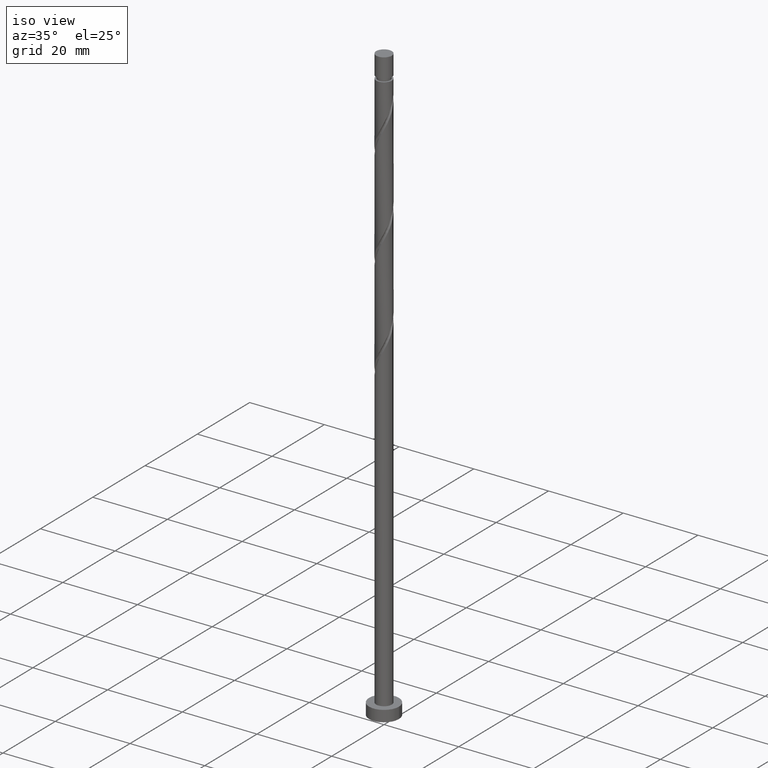
[diagram: clean part render]
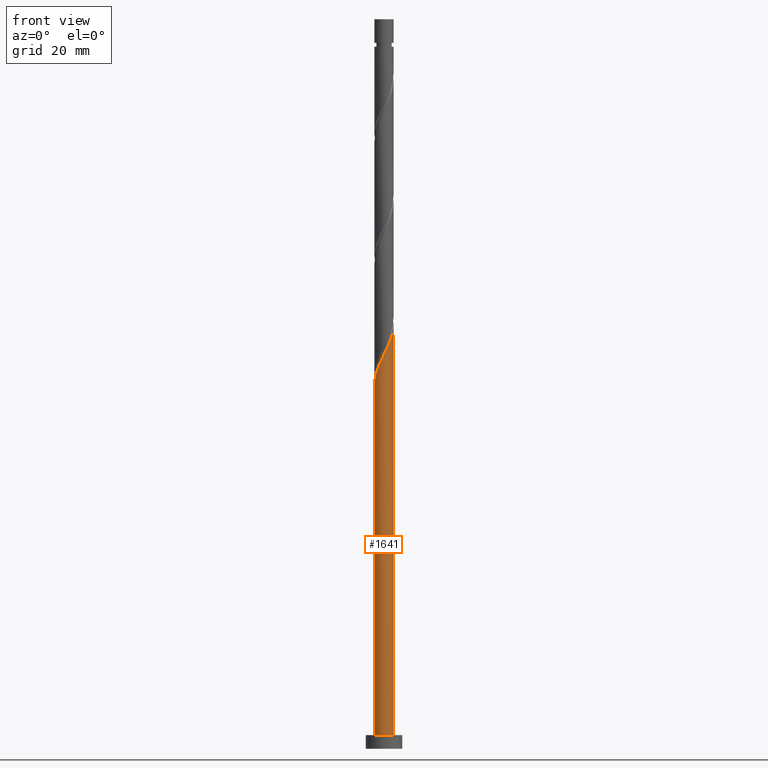
[diagram: tour spotlight — one face highlighted and labeled with its STEP entity id]
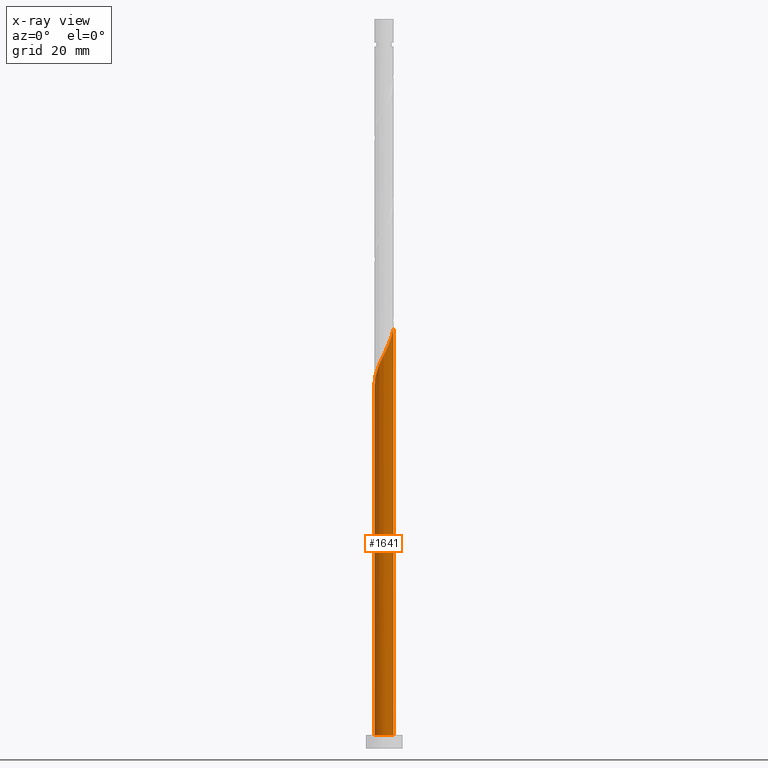
[diagram: x-ray of the same camera — body ghosted, this tour face saturated]
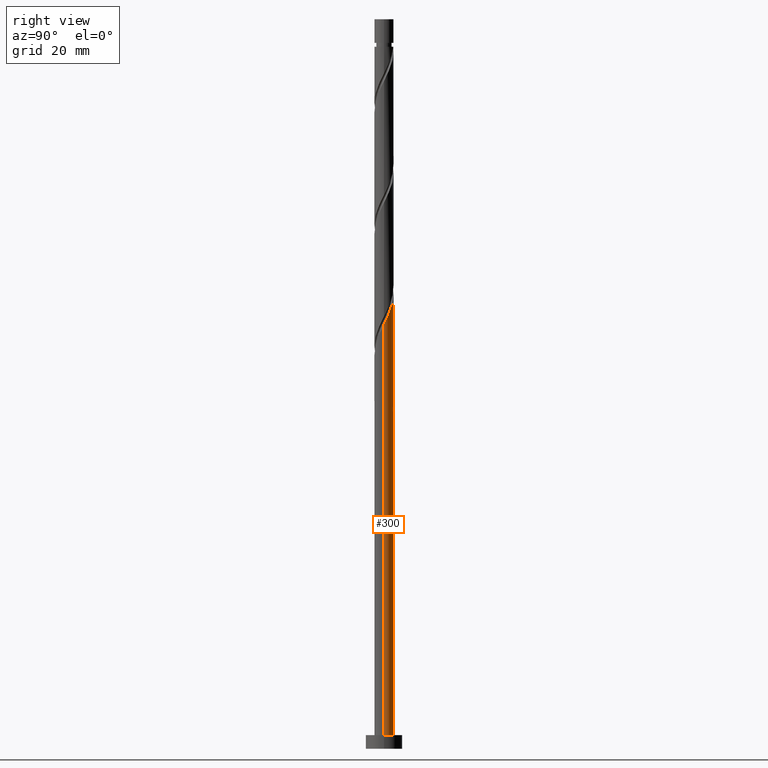
[diagram: tour spotlight — one face highlighted and labeled with its STEP entity id]
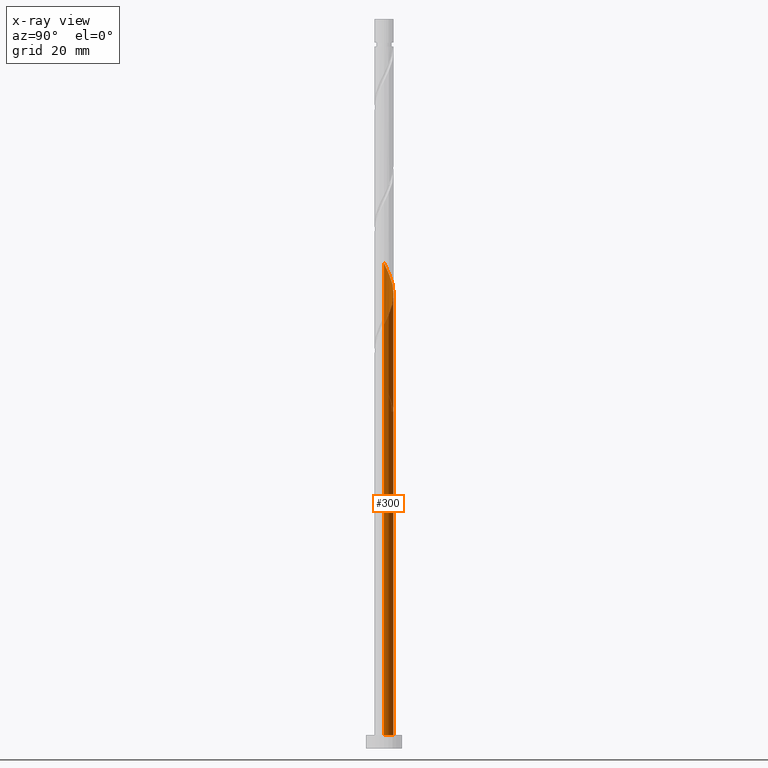
[diagram: x-ray of the same camera — body ghosted, this tour face saturated]
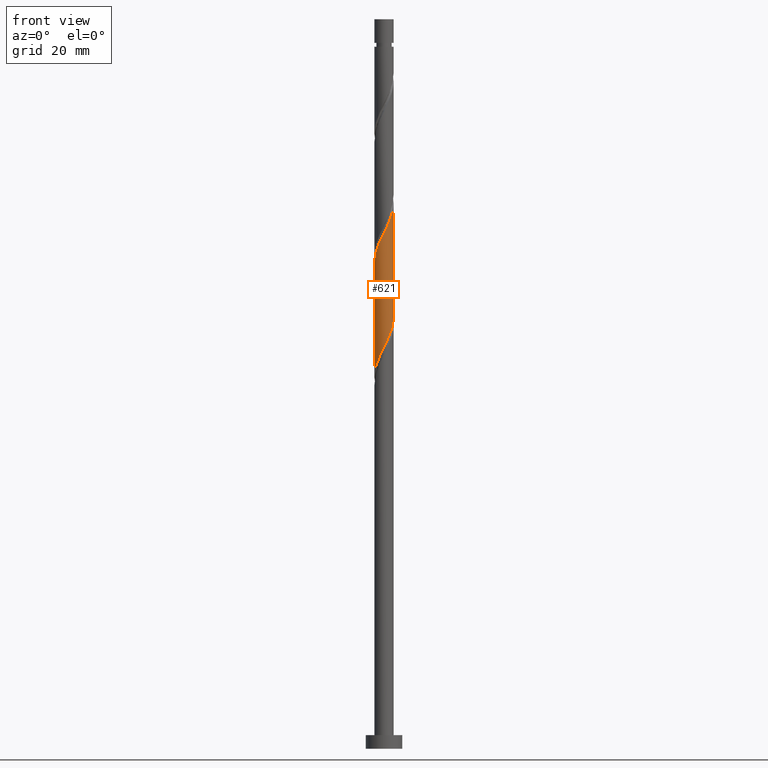
[diagram: tour spotlight — one face highlighted and labeled with its STEP entity id]
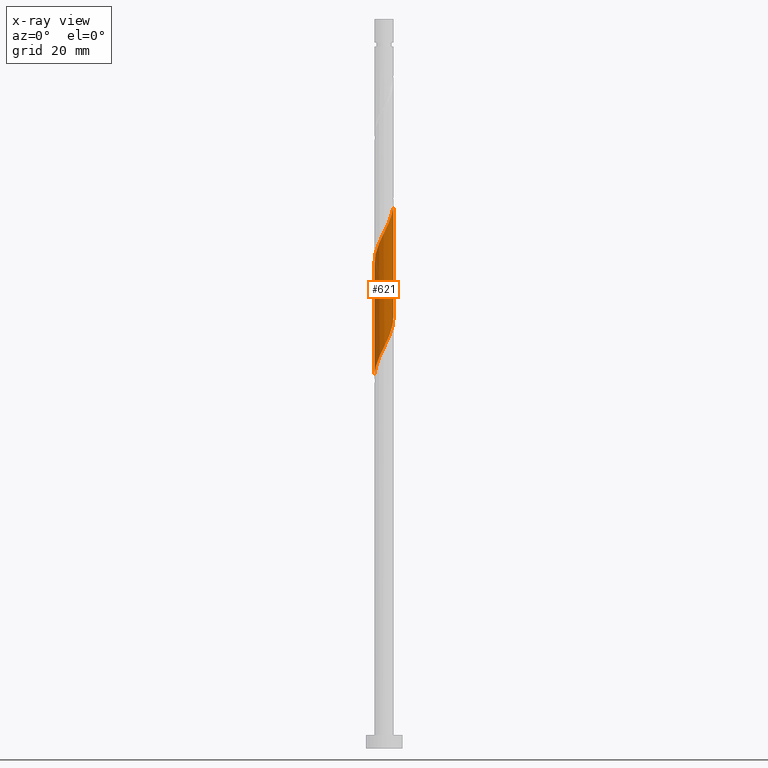
[diagram: x-ray of the same camera — body ghosted, this tour face saturated]
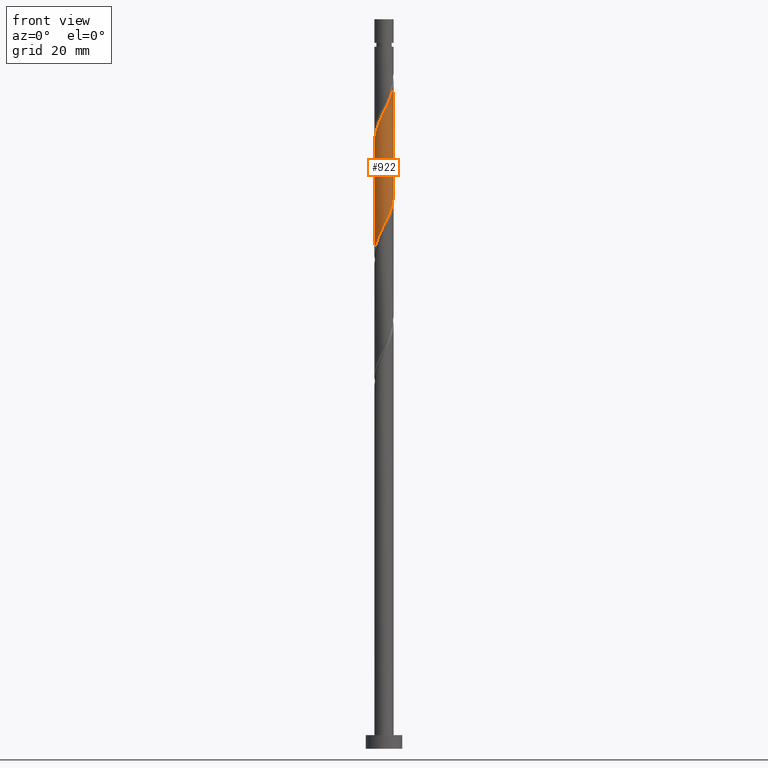
[diagram: tour spotlight — one face highlighted and labeled with its STEP entity id]
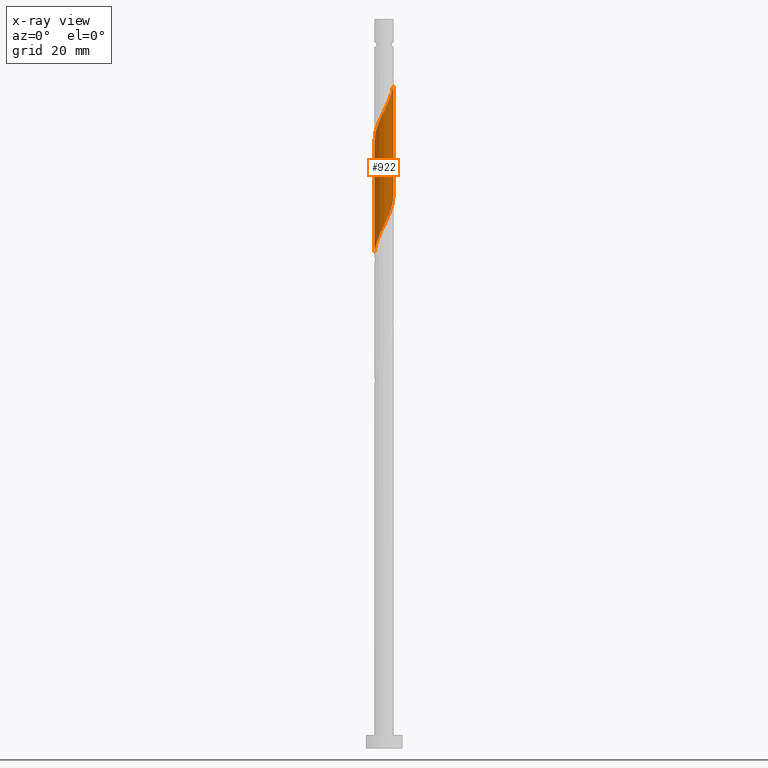
[diagram: x-ray of the same camera — body ghosted, this tour face saturated]
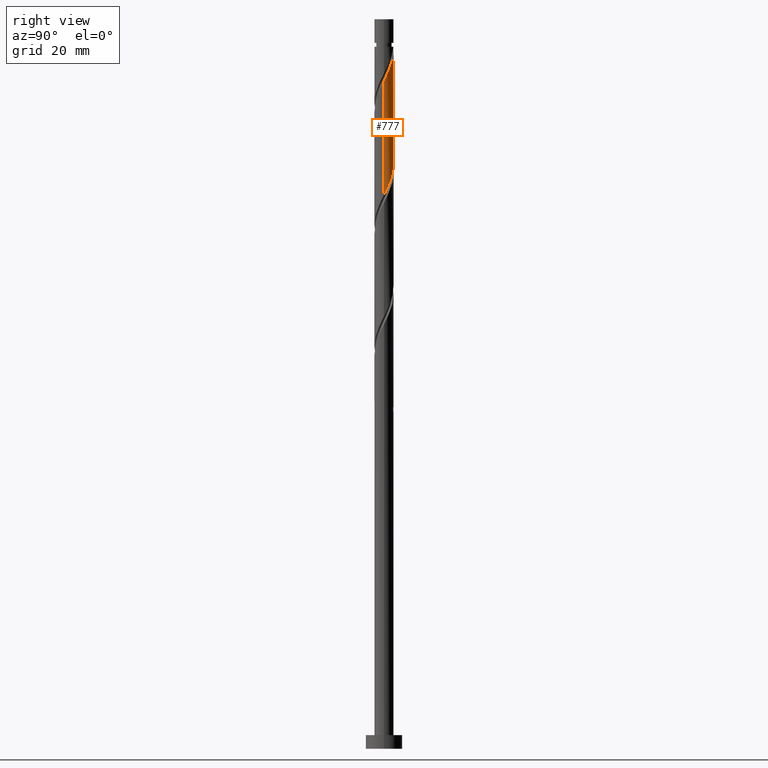
[diagram: tour spotlight — one face highlighted and labeled with its STEP entity id]
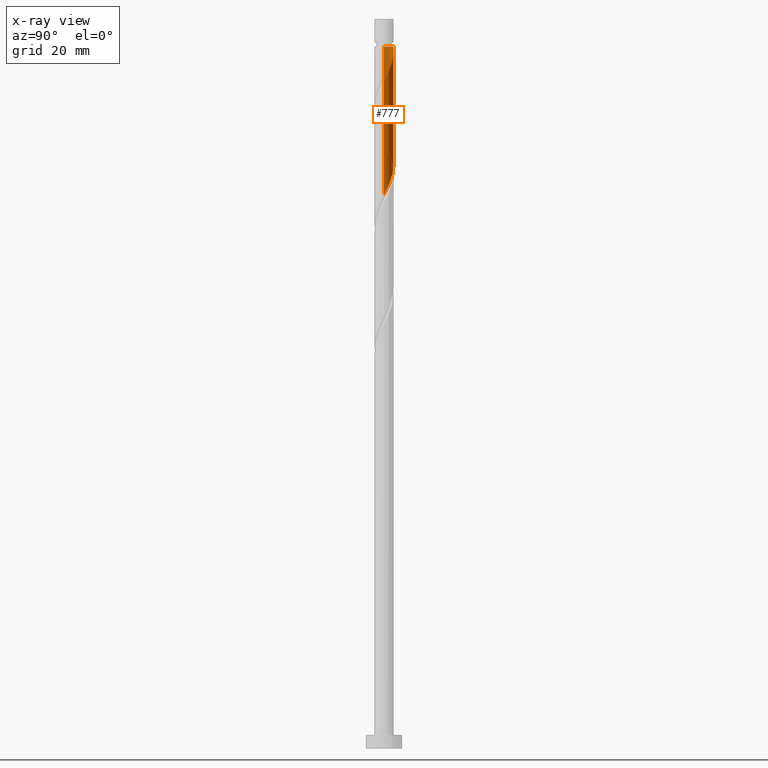
[diagram: x-ray of the same camera — body ghosted, this tour face saturated]
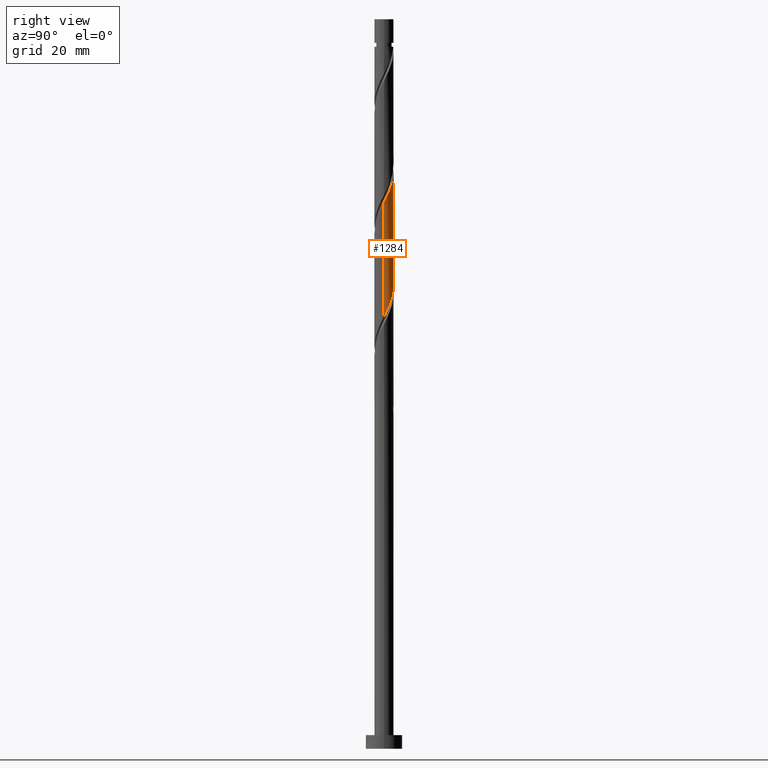
[diagram: tour spotlight — one face highlighted and labeled with its STEP entity id]
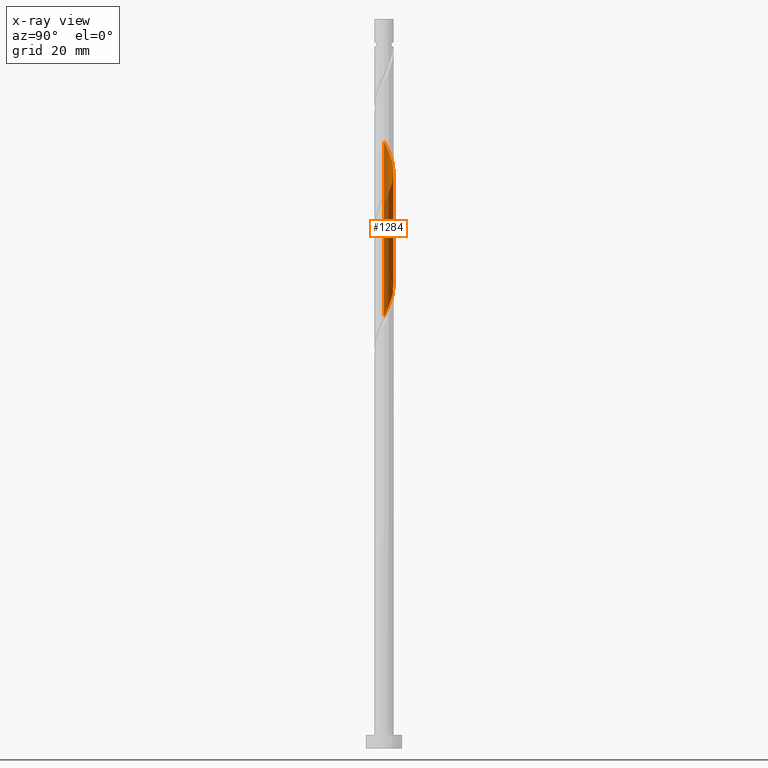
[diagram: x-ray of the same camera — body ghosted, this tour face saturated]
A machine part: a face-by-face anatomy tour. The part has 21 B-rep faces; the first image is the clean iso view, then the 6 largest visible faces are spotlighted one at a time (largest first), each with its STEP entity span.

Face 1 — front view, entity #1641. An x-ray twin of the same camera follows (body ghosted, this face saturated) — the face is partly hidden behind the body. In plain terms, the highlighted cylindrical surface (edge-blend (fillet) strip) has radius 2.1 mm, axis along (-0, -0, -1).
Definition (entity closure, byte-faithful):
#18 = CARTESIAN_POINT ( 'NONE',  ( 1.247754853313230550, -1.715888171891629232, 89.12136248489510137 ) ) ;
#32 = CARTESIAN_POINT ( 'NONE',  ( -1.698422904408210643, -1.235054508020432706, 82.45469581822845839 ) ) ;
#44 = CARTESIAN_POINT ( 'NONE',  ( -2.100000000000000089, 0.000000000000000000, 160.0000000000000000 ) ) ;
#93 = CARTESIAN_POINT ( 'NONE',  ( 2.100000000000000089, 2.571758278209441957E-16, 160.0000000000000000 ) ) ;
#185 = CARTESIAN_POINT ( 'NONE',  ( 1.828995469419657738, -1.031879630985310436, 90.93954430307692860 ) ) ;
#186 = CYLINDRICAL_SURFACE ( 'NONE', #1156, 2.100000000000000089 ) ;
#305 = CARTESIAN_POINT ( 'NONE',  ( -2.100000000000003642, -0.06042860570002486081, 79.90915752546393946 ) ) ;
#322 = ORIENTED_EDGE ( 'NONE', *, *, #1586, .T. ) ;
#323 = DIRECTION ( 'NONE',  ( -1.000000000000000000, 0.000000000000000000, 0.000000000000000000 ) ) ;
#373 = DIRECTION ( 'NONE',  ( 0.000000000000000000, 0.000000000000000000, 1.000000000000000000 ) ) ;
#397 = CARTESIAN_POINT ( 'NONE',  ( 1.977357362370888438, -0.7689097826676156711, 91.54560490913752346 ) ) ;
#535 = CARTESIAN_POINT ( 'NONE',  ( -1.042490682990717676, -1.847803444168742315, 84.27287763641028562 ) ) ;
#548 = LINE ( 'NONE', #44, #1410 ) ;
#555 = CARTESIAN_POINT ( 'NONE',  ( 0.000000000000000000, 0.000000000000000000, 160.0000000000000000 ) ) ;
#560 = CARTESIAN_POINT ( 'NONE',  ( 0.7137904526264364780, -1.997915809573483248, 87.90924127277391165 ) ) ;
#662 = CARTESIAN_POINT ( 'NONE',  ( -1.977579907388735903, -0.7065250950195430812, 81.24257460610721182 ) ) ;
#664 = CIRCLE ( 'NONE', #1294, 2.100000000000000089 ) ;
#677 = CARTESIAN_POINT ( 'NONE',  ( 2.045622388470993425, -0.4747936854953339614, 92.15166551519813254 ) ) ;
#707 = VERTEX_POINT ( 'NONE', #856 ) ;
#782 = DIRECTION ( 'NONE',  ( -0.000000000000000000, -0.000000000000000000, -1.000000000000000000 ) ) ;
#799 = CARTESIAN_POINT ( 'NONE',  ( 1.680633576468428148, -1.294849479303004092, 90.33348369701630531 ) ) ;
#801 = EDGE_CURVE ( 'NONE', #1098, #1345, #664, .T. ) ;
#817 = VECTOR ( 'NONE', #1121, 1000.000000000000000 ) ;
#856 = CARTESIAN_POINT ( 'NONE',  ( 2.100000000000003642, 1.652728687736337971E-15, 93.12039285407907130 ) ) ;
#877 = CARTESIAN_POINT ( 'NONE',  ( 2.100000000000003642, -0.2405107475087573665, 92.63443290110774342 ) ) ;
#906 = CARTESIAN_POINT ( 'NONE',  ( -0.4796760965221114614, -2.066657986902920019, 85.48499884853148956 ) ) ;
#930 = CARTESIAN_POINT ( 'NONE',  ( -2.096525147393189847, -0.1207572206867008890, 80.03045339398602209 ) ) ;
#968 = ORIENTED_EDGE ( 'NONE', *, *, #1015, .F. ) ;
#1015 = EDGE_CURVE ( 'NONE', #707, #1345, #1198, .T. ) ;
#1028 = CARTESIAN_POINT ( 'NONE',  ( -0.7610833897564149852, -1.957230715535830612, 84.87893824247085206 ) ) ;
#1039 = CARTESIAN_POINT ( 'NONE',  ( -1.281669778622473999, -1.663527149933487603, 83.66681703034964812 ) ) ;
#1043 = CARTESIAN_POINT ( 'NONE',  ( -2.100000000000003197, 4.113125693461475729E-15, 79.78705952074574270 ) ) ;
#1084 = CARTESIAN_POINT ( 'NONE',  ( 2.100000000000000089, 2.571758278209441957E-16, 3.000000000000000000 ) ) ;
#1098 = VERTEX_POINT ( 'NONE', #1298 ) ;
#1119 = CARTESIAN_POINT ( 'NONE',  ( 2.100000000000003642, 1.652728687736338168E-15, 93.12039285407907130 ) ) ;
#1121 = DIRECTION ( 'NONE',  ( -0.000000000000000000, -0.000000000000000000, -1.000000000000000000 ) ) ;
#1123 =( BOUNDED_CURVE ( )  B_SPLINE_CURVE ( 2, ( #1043, #305, #930, #1278, #662, #1423, #32, #1415, #1039, #535, #1028, #906, #1443, #1544, #1306, #560, #1255, #18, #1296, #799, #185, #397, #677, #877, #1119 ),
 .UNSPECIFIED., .F., .T. ) 
 B_SPLINE_CURVE_WITH_KNOTS ( ( 3, 2, 2, 2, 2, 2, 2, 2, 2, 2, 2, 2, 3 ),
 ( 0.05452521624175120374, 0.05681818181818176772, 0.06818181818181823228, 0.07954545454545458583, 0.09090909090909093937, 0.1022727272727272929, 0.1136363636363636465, 0.1250000000000000000, 0.1363636363636363535, 0.1477272727272727071, 0.1590909090909090606, 0.1704545454545454142, 0.1795252162417513286 ),
 .UNSPECIFIED. ) 
 CURVE ( )  GEOMETRIC_REPRESENTATION_ITEM ( )  RATIONAL_B_SPLINE_CURVE ( ( 0.9061101570135688954, 0.9072237824201511147, 0.9090909090909286006, 0.8998376744372309499, 0.9090909090909286006, 0.8998376744372309499, 0.9090909090909286006, 0.8998376744372309499, 0.9090909090909286006, 0.8998376744372309499, 0.9090909090909286006, 0.8998376744372309499, 0.9090909090909286006, 0.8998376744372309499, 0.9090909090909286006, 0.8998376744372309499, 0.9090909090909286006, 0.8998376744372309499, 0.9090909090909286006, 0.8998376744372309499, 0.9090909090909286006, 0.8998376744372309499, 0.9090909090909286006, 0.9017048011080083247, 0.9061101570135690064 ) ) 
 REPRESENTATION_ITEM ( '' )  );
#1130 = ORIENTED_EDGE ( 'NONE', *, *, #801, .T. ) ;
#1155 = ORIENTED_EDGE ( 'NONE', *, *, #1159, .F. ) ;
#1156 = AXIS2_PLACEMENT_3D ( 'NONE', #555, #782, #323 ) ;
#1159 = EDGE_CURVE ( 'NONE', #1548, #707, #1123, .T. ) ;
#1198 = LINE ( 'NONE', #93, #817 ) ;
#1255 = CARTESIAN_POINT ( 'NONE',  ( 0.9807726529698331808, -1.856901990732556573, 88.51530187883449230 ) ) ;
#1278 = CARTESIAN_POINT ( 'NONE',  ( -2.079162880215282172, -0.4221920296964535857, 80.63651400004663117 ) ) ;
#1294 = AXIS2_PLACEMENT_3D ( 'NONE', #1341, #373, #1636 ) ;
#1296 = CARTESIAN_POINT ( 'NONE',  ( 1.464194214890828905, -1.505368825597316329, 89.72742309095572466 ) ) ;
#1298 = CARTESIAN_POINT ( 'NONE',  ( -2.100000000000000089, 0.000000000000000000, 3.000000000000000000 ) ) ;
#1306 = CARTESIAN_POINT ( 'NONE',  ( 0.4178947235847811359, -2.058000000000003382, 87.30318066671328836 ) ) ;
#1317 = CARTESIAN_POINT ( 'NONE',  ( -2.100000000000003197, 4.113125693461475729E-15, 79.78705952074574270 ) ) ;
#1341 = CARTESIAN_POINT ( 'NONE',  ( 0.000000000000000000, 0.000000000000000000, 3.000000000000000000 ) ) ;
#1345 = VERTEX_POINT ( 'NONE', #1084 ) ;
#1410 = VECTOR ( 'NONE', #1600, 1000.000000000000000 ) ;
#1415 = CARTESIAN_POINT ( 'NONE',  ( -1.520848874254230765, -1.479250855698233114, 83.06075642428908168 ) ) ;
#1423 = CARTESIAN_POINT ( 'NONE',  ( -1.875996934562189189, -0.9908581603426330764, 81.84863521216782090 ) ) ;
#1443 = CARTESIAN_POINT ( 'NONE',  ( -0.1788385509894928893, -2.092371088664721324, 86.09105945459208442 ) ) ;
#1466 = EDGE_LOOP ( 'NONE', ( #968, #1155, #322, #1130 ) ) ;
#1544 = CARTESIAN_POINT ( 'NONE',  ( 0.1219989945431257244, -2.118084190426524405, 86.69712006065270771 ) ) ;
#1548 = VERTEX_POINT ( 'NONE', #1317 ) ;
#1559 = FACE_OUTER_BOUND ( 'NONE', #1466, .T. ) ;
#1586 = EDGE_CURVE ( 'NONE', #1548, #1098, #548, .T. ) ;
#1600 = DIRECTION ( 'NONE',  ( -0.000000000000000000, -0.000000000000000000, -1.000000000000000000 ) ) ;
#1636 = DIRECTION ( 'NONE',  ( 1.000000000000000000, 0.000000000000000000, 0.000000000000000000 ) ) ;
#1641 = ADVANCED_FACE ( 'NONE', ( #1559 ), #186, .T. ) ;

Face 2 — right view, entity #300. An x-ray twin of the same camera follows (body ghosted, this face saturated) — the face is partly hidden behind the body. In plain terms, the highlighted cylindrical surface (edge-blend (fillet) strip) has radius 2.1 mm, axis along (-0, -0, -1).
Definition (entity closure, byte-faithful):
#2 = CARTESIAN_POINT ( 'NONE',  ( -2.100000000000000089, 0.000000000000000000, 160.0000000000000000 ) ) ;
#43 = CARTESIAN_POINT ( 'NONE',  ( -0.1788385509894921954, 2.092371088664717771, 75.18196854550119212 ) ) ;
#44 = CARTESIAN_POINT ( 'NONE',  ( -2.100000000000000089, 0.000000000000000000, 160.0000000000000000 ) ) ;
#69 = ORIENTED_EDGE ( 'NONE', *, *, #1397, .T. ) ;
#70 = CIRCLE ( 'NONE', #1024, 2.100000000000000089 ) ;
#88 = CARTESIAN_POINT ( 'NONE',  ( -2.100000000000000089, 8.218772976571265270E-15, 81.48596847934749121 ) ) ;
#93 = CARTESIAN_POINT ( 'NONE',  ( 2.100000000000000089, 2.571758278209441957E-16, 160.0000000000000000 ) ) ;
#97 = CARTESIAN_POINT ( 'NONE',  ( 2.096525147393190291, 0.1207572206867006670, 93.36378672731936490 ) ) ;
#121 = CIRCLE ( 'NONE', #148, 2.100000000000000089 ) ;
#133 = LINE ( 'NONE', #2, #1620 ) ;
#143 = CARTESIAN_POINT ( 'NONE',  ( -1.680633576468428148, 1.294849479303003648, 77.00015036368299093 ) ) ;
#148 = AXIS2_PLACEMENT_3D ( 'NONE', #784, #1053, #1289 ) ;
#167 = CARTESIAN_POINT ( 'NONE',  ( -0.4796760965221105733, 2.066657986902916022, 75.78802915156177278 ) ) ;
#174 = VERTEX_POINT ( 'NONE', #559 ) ;
#206 = CARTESIAN_POINT ( 'NONE',  ( -0.7137904526264369220, 1.997915809573482804, 101.2425746061072260 ) ) ;
#236 = CARTESIAN_POINT ( 'NONE',  ( 1.520848874254232319, 1.479250855698232447, 96.39408975762233922 ) ) ;
#237 = ORIENTED_EDGE ( 'NONE', *, *, #448, .F. ) ;
#259 = CARTESIAN_POINT ( 'NONE',  ( -1.875996934562186080, 0.9908581603426320772, 79.42439278792542723 ) ) ;
#300 = ADVANCED_FACE ( 'NONE', ( #1056 ), #352, .T. ) ;
#312 = CARTESIAN_POINT ( 'NONE',  ( -1.281669778622471556, 1.663527149933485383, 77.60621096974358579 ) ) ;
#342 = CARTESIAN_POINT ( 'NONE',  ( -0.4178947235847809694, 2.058000000000003382, 100.6365140000466454 ) ) ;
#352 = CYLINDRICAL_SURFACE ( 'NONE', #916, 2.100000000000000089 ) ;
#369 = CARTESIAN_POINT ( 'NONE',  ( 0.4796760965221116835, 2.066657986902919575, 98.81833218186477552 ) ) ;
#371 = DIRECTION ( 'NONE',  ( 1.000000000000000000, 0.000000000000000000, 0.000000000000000000 ) ) ;
#448 = EDGE_CURVE ( 'NONE', #707, #808, #861, .T. ) ;
#462 = CARTESIAN_POINT ( 'NONE',  ( 2.079162880215282172, 0.4221920296964533081, 93.96984733337997397 ) ) ;
#464 = VERTEX_POINT ( 'NONE', #1373 ) ;
#470 = CARTESIAN_POINT ( 'NONE',  ( 2.100000000000003642, 1.652728687736338168E-15, 93.12039285407907130 ) ) ;
#477 = CARTESIAN_POINT ( 'NONE',  ( -1.977357362370887994, 0.7689097826676162262, 104.8789382424708805 ) ) ;
#486 = ORIENTED_EDGE ( 'NONE', *, *, #1335, .F. ) ;
#521 = CARTESIAN_POINT ( 'NONE',  ( -1.828995469419657960, 1.031879630985309770, 77.60621096974360000 ) ) ;
#546 = CARTESIAN_POINT ( 'NONE',  ( -0.4178947235847809138, 2.058000000000003826, 73.96984733337995976 ) ) ;
#548 = LINE ( 'NONE', #44, #1410 ) ;
#559 = CARTESIAN_POINT ( 'NONE',  ( -0.4178947235847809138, 2.058000000000003826, 73.96984733337995976 ) ) ;
#561 = CARTESIAN_POINT ( 'NONE',  ( -0.7610833897564127648, 1.957230715535827503, 76.39408975762242449 ) ) ;
#590 = ORIENTED_EDGE ( 'NONE', *, *, #1015, .T. ) ;
#600 = VERTEX_POINT ( 'NONE', #88 ) ;
#610 = CARTESIAN_POINT ( 'NONE',  ( 0.000000000000000000, 0.000000000000000000, 3.000000000000000000 ) ) ;
#628 = ORIENTED_EDGE ( 'NONE', *, *, #986, .F. ) ;
#633 = ORIENTED_EDGE ( 'NONE', *, *, #1029, .F. ) ;
#635 = CARTESIAN_POINT ( 'NONE',  ( -2.096525147393187183, 0.1207572206867013331, 81.24257460610724024 ) ) ;
#643 =( BOUNDED_CURVE ( )  B_SPLINE_CURVE ( 2, ( #1110, #1653, #635, #644, #1514, #259, #745, #1558, #312, #1287, #561, #167, #43, #1339, #715 ),
 .UNSPECIFIED., .F., .T. ) 
 B_SPLINE_CURVE_WITH_KNOTS ( ( 3, 2, 2, 2, 2, 2, 2, 3 ),
 ( 0.9295252162417513286, 0.9318181818181817677, 0.9431818181818182323, 0.9545454545454545858, 0.9659090909090909394, 0.9772727272727272929, 0.9886363636363636465, 1.000000000000000000 ),
 .UNSPECIFIED. ) 
 CURVE ( )  GEOMETRIC_REPRESENTATION_ITEM ( )  RATIONAL_B_SPLINE_CURVE ( ( 0.9061101570135617900, 0.9072237824201438983, 0.9090909090909213841, 0.8998376744372237335, 0.9090909090909213841, 0.8998376744372237335, 0.9090909090909213841, 0.8998376744372237335, 0.9090909090909213841, 0.8998376744372237335, 0.9090909090909213841, 0.8998376744372237335, 0.9090909090909213841, 0.8998376744372237335, 0.9090909090909213841 ) ) 
 REPRESENTATION_ITEM ( '' )  );
#644 = CARTESIAN_POINT ( 'NONE',  ( -2.079162880215278619, 0.4221920296964534747, 80.63651400004661696 ) ) ;
#701 = CARTESIAN_POINT ( 'NONE',  ( 1.281669778622473777, 1.663527149933487825, 97.00015036368297672 ) ) ;
#706 = CARTESIAN_POINT ( 'NONE',  ( 1.042490682990717010, 1.847803444168742981, 97.60621096974358579 ) ) ;
#707 = VERTEX_POINT ( 'NONE', #856 ) ;
#713 = CARTESIAN_POINT ( 'NONE',  ( -2.100000000000003197, 4.113125693461475729E-15, 79.78705952074574270 ) ) ;
#715 = CARTESIAN_POINT ( 'NONE',  ( 0.4178947235847815245, 2.057999999999999829, 73.96984733337995976 ) ) ;
#717 = CARTESIAN_POINT ( 'NONE',  ( -2.100000000000003197, -1.749948022309063641E-15, 106.4537261874123857 ) ) ;
#741 = ORIENTED_EDGE ( 'NONE', *, *, #1138, .T. ) ;
#745 = CARTESIAN_POINT ( 'NONE',  ( -1.698422904408207090, 1.235054508020431596, 78.81833218186483236 ) ) ;
#784 = CARTESIAN_POINT ( 'NONE',  ( 0.000000000000000000, 0.000000000000000000, 73.96984733337995976 ) ) ;
#808 = VERTEX_POINT ( 'NONE', #717 ) ;
#817 = VECTOR ( 'NONE', #1121, 1000.000000000000000 ) ;
#820 = CARTESIAN_POINT ( 'NONE',  ( 0.1788385509894930836, 2.092371088664721324, 99.42439278792539881 ) ) ;
#828 = CARTESIAN_POINT ( 'NONE',  ( -1.828995469419657960, 1.031879630985309770, 104.2728776364102572 ) ) ;
#843 = CARTESIAN_POINT ( 'NONE',  ( -2.100000000000003197, -1.749948022309063641E-15, 106.4537261874123999 ) ) ;
#853 = CARTESIAN_POINT ( 'NONE',  ( -1.680633576468428148, 1.294849479303003648, 103.6668170303496765 ) ) ;
#856 = CARTESIAN_POINT ( 'NONE',  ( 2.100000000000003642, 1.652728687736337971E-15, 93.12039285407907130 ) ) ;
#861 =( BOUNDED_CURVE ( )  B_SPLINE_CURVE ( 2, ( #470, #1186, #97, #462, #1500, #957, #1074, #236, #701, #706, #943, #369, #820, #951, #342, #206, #1082, #1617, #1353, #853, #828, #477, #1364, #1634, #843 ),
 .UNSPECIFIED., .F., .T. ) 
 B_SPLINE_CURVE_WITH_KNOTS ( ( 3, 2, 2, 2, 2, 2, 2, 2, 2, 2, 2, 2, 3 ),
 ( 0.1795252162417513286, 0.1818181818181817677, 0.1931818181818182323, 0.2045454545454545858, 0.2159090909090909394, 0.2272727272727272929, 0.2386363636363636465, 0.2500000000000000000, 0.2613636363636363535, 0.2727272727272727071, 0.2840909090909090606, 0.2954545454545454142, 0.3045252162417512731 ),
 .UNSPECIFIED. ) 
 CURVE ( )  GEOMETRIC_REPRESENTATION_ITEM ( )  RATIONAL_B_SPLINE_CURVE ( ( 0.9061101570135690064, 0.9072237824201512257, 0.9090909090909286006, 0.8998376744372309499, 0.9090909090909286006, 0.8998376744372309499, 0.9090909090909286006, 0.8998376744372309499, 0.9090909090909286006, 0.8998376744372309499, 0.9090909090909286006, 0.8998376744372309499, 0.9090909090909286006, 0.8998376744372309499, 0.9090909090909286006, 0.8998376744372309499, 0.9090909090909286006, 0.8998376744372309499, 0.9090909090909286006, 0.8998376744372309499, 0.9090909090909286006, 0.8998376744372309499, 0.9090909090909286006, 0.9017048011080084358, 0.9061101570135690064 ) ) 
 REPRESENTATION_ITEM ( '' )  );
#888 = CARTESIAN_POINT ( 'NONE',  ( -2.045622388470993425, 0.4747936854953340724, 78.81833218186480394 ) ) ;
#916 = AXIS2_PLACEMENT_3D ( 'NONE', #1336, #1472, #967 ) ;
#943 = CARTESIAN_POINT ( 'NONE',  ( 0.7610833897564142081, 1.957230715535830612, 98.21227157580422329 ) ) ;
#951 = CARTESIAN_POINT ( 'NONE',  ( -0.1219989945431254608, 2.118084190426524405, 100.0304533939860363 ) ) ;
#956 =( BOUNDED_CURVE ( )  B_SPLINE_CURVE ( 2, ( #546, #1569, #1412, #1036, #1263, #143, #521, #1540, #888, #1405, #713 ),
 .UNSPECIFIED., .F., .T. ) 
 B_SPLINE_CURVE_WITH_KNOTS ( ( 3, 2, 2, 2, 2, 3 ),
 ( 0.000000000000000000, 0.01136363636363635354, 0.02272727272727270709, 0.03409090909090906063, 0.04545454545454541417, 0.05452521624175121068 ),
 .UNSPECIFIED. ) 
 CURVE ( )  GEOMETRIC_REPRESENTATION_ITEM ( )  RATIONAL_B_SPLINE_CURVE ( ( 0.9090909090909286006, 0.8998376744372309499, 0.9090909090909286006, 0.8998376744372309499, 0.9090909090909286006, 0.8998376744372309499, 0.9090909090909286006, 0.8998376744372309499, 0.9090909090909286006, 0.9017048011080084358, 0.9061101570135688954 ) ) 
 REPRESENTATION_ITEM ( '' )  );
#957 = CARTESIAN_POINT ( 'NONE',  ( 1.875996934562190299, 0.9908581603426326323, 95.18196854550116370 ) ) ;
#967 = DIRECTION ( 'NONE',  ( -1.000000000000000000, 0.000000000000000000, 0.000000000000000000 ) ) ;
#986 = EDGE_CURVE ( 'NONE', #600, #464, #643, .T. ) ;
#1015 = EDGE_CURVE ( 'NONE', #707, #1345, #1198, .T. ) ;
#1024 = AXIS2_PLACEMENT_3D ( 'NONE', #610, #1099, #371 ) ;
#1029 = EDGE_CURVE ( 'NONE', #808, #600, #133, .T. ) ;
#1036 = CARTESIAN_POINT ( 'NONE',  ( -1.247754853313230106, 1.715888171891629232, 75.78802915156178699 ) ) ;
#1053 = DIRECTION ( 'NONE',  ( 0.000000000000000000, -0.000000000000000000, -1.000000000000000000 ) ) ;
#1056 = FACE_OUTER_BOUND ( 'NONE', #1657, .T. ) ;
#1074 = CARTESIAN_POINT ( 'NONE',  ( 1.698422904408210865, 1.235054508020432040, 95.78802915156177278 ) ) ;
#1082 = CARTESIAN_POINT ( 'NONE',  ( -0.9807726529698335138, 1.856901990732555685, 101.8486352121678209 ) ) ;
#1084 = CARTESIAN_POINT ( 'NONE',  ( 2.100000000000000089, 2.571758278209441957E-16, 3.000000000000000000 ) ) ;
#1098 = VERTEX_POINT ( 'NONE', #1298 ) ;
#1099 = DIRECTION ( 'NONE',  ( 0.000000000000000000, 0.000000000000000000, 1.000000000000000000 ) ) ;
#1110 = CARTESIAN_POINT ( 'NONE',  ( -2.100000000000000089, 8.218772976571263692E-15, 81.48596847934750542 ) ) ;
#1121 = DIRECTION ( 'NONE',  ( -0.000000000000000000, -0.000000000000000000, -1.000000000000000000 ) ) ;
#1138 = EDGE_CURVE ( 'NONE', #174, #464, #121, .T. ) ;
#1186 = CARTESIAN_POINT ( 'NONE',  ( 2.100000000000003197, 0.06042860570002799719, 93.24249085879728227 ) ) ;
#1198 = LINE ( 'NONE', #93, #817 ) ;
#1263 = CARTESIAN_POINT ( 'NONE',  ( -1.464194214890828905, 1.505368825597316329, 76.39408975762239606 ) ) ;
#1287 = CARTESIAN_POINT ( 'NONE',  ( -1.042490682990715678, 1.847803444168739651, 77.00015036368297672 ) ) ;
#1289 = DIRECTION ( 'NONE',  ( -1.000000000000000000, 0.000000000000000000, 0.000000000000000000 ) ) ;
#1298 = CARTESIAN_POINT ( 'NONE',  ( -2.100000000000000089, 0.000000000000000000, 3.000000000000000000 ) ) ;
#1317 = CARTESIAN_POINT ( 'NONE',  ( -2.100000000000003197, 4.113125693461475729E-15, 79.78705952074574270 ) ) ;
#1327 = ORIENTED_EDGE ( 'NONE', *, *, #1586, .F. ) ;
#1335 = EDGE_CURVE ( 'NONE', #174, #1548, #956, .T. ) ;
#1336 = CARTESIAN_POINT ( 'NONE',  ( 0.000000000000000000, 0.000000000000000000, 160.0000000000000000 ) ) ;
#1339 = CARTESIAN_POINT ( 'NONE',  ( 0.1219989945431259742, 2.118084190426520852, 74.57590793944058305 ) ) ;
#1345 = VERTEX_POINT ( 'NONE', #1084 ) ;
#1353 = CARTESIAN_POINT ( 'NONE',  ( -1.464194214890828905, 1.505368825597316329, 103.0607564242890390 ) ) ;
#1364 = CARTESIAN_POINT ( 'NONE',  ( -2.045622388470993425, 0.4747936854953340724, 105.4849988485314753 ) ) ;
#1373 = CARTESIAN_POINT ( 'NONE',  ( 0.4178947235847815245, 2.057999999999999829, 73.96984733337995976 ) ) ;
#1397 = EDGE_CURVE ( 'NONE', #1345, #1098, #70, .T. ) ;
#1405 = CARTESIAN_POINT ( 'NONE',  ( -2.100000000000002753, 0.2405107475087607249, 79.30109956777442903 ) ) ;
#1410 = VECTOR ( 'NONE', #1600, 1000.000000000000000 ) ;
#1412 = CARTESIAN_POINT ( 'NONE',  ( -0.9807726529698335138, 1.856901990732555685, 75.18196854550120634 ) ) ;
#1467 = DIRECTION ( 'NONE',  ( -0.000000000000000000, -0.000000000000000000, -1.000000000000000000 ) ) ;
#1472 = DIRECTION ( 'NONE',  ( -0.000000000000000000, -0.000000000000000000, -1.000000000000000000 ) ) ;
#1500 = CARTESIAN_POINT ( 'NONE',  ( 1.977579907388735903, 0.7065250950195427482, 94.57590793944059726 ) ) ;
#1514 = CARTESIAN_POINT ( 'NONE',  ( -1.977579907388732350, 0.7065250950195426372, 80.03045339398600788 ) ) ;
#1540 = CARTESIAN_POINT ( 'NONE',  ( -1.977357362370887994, 0.7689097826676162262, 78.21227157580419487 ) ) ;
#1548 = VERTEX_POINT ( 'NONE', #1317 ) ;
#1558 = CARTESIAN_POINT ( 'NONE',  ( -1.520848874254228322, 1.479250855698231115, 78.21227157580420908 ) ) ;
#1569 = CARTESIAN_POINT ( 'NONE',  ( -0.7137904526264369220, 1.997915809573482804, 74.57590793944056884 ) ) ;
#1586 = EDGE_CURVE ( 'NONE', #1548, #1098, #548, .T. ) ;
#1600 = DIRECTION ( 'NONE',  ( -0.000000000000000000, -0.000000000000000000, -1.000000000000000000 ) ) ;
#1617 = CARTESIAN_POINT ( 'NONE',  ( -1.247754853313230106, 1.715888171891629232, 102.4546958182284300 ) ) ;
#1620 = VECTOR ( 'NONE', #1467, 1000.000000000000000 ) ;
#1634 = CARTESIAN_POINT ( 'NONE',  ( -2.100000000000003197, 0.2405107475087589208, 105.9677662344411004 ) ) ;
#1653 = CARTESIAN_POINT ( 'NONE',  ( -2.100000000000000089, 0.06042860570002867721, 81.36387047462929445 ) ) ;
#1657 = EDGE_LOOP ( 'NONE', ( #237, #590, #69, #1327, #486, #741, #628, #633 ) ) ;

Face 3 — front view, entity #621. An x-ray twin of the same camera follows (body ghosted, this face saturated) — the face is partly hidden behind the body. In plain terms, the highlighted cylindrical surface (edge-blend (fillet) strip) has radius 2.1 mm, axis along (-0, -0, -1).
Definition (entity closure, byte-faithful):
#2 = CARTESIAN_POINT ( 'NONE',  ( -2.100000000000000089, 0.000000000000000000, 160.0000000000000000 ) ) ;
#9 = DIRECTION ( 'NONE',  ( -0.000000000000000000, -0.000000000000000000, -1.000000000000000000 ) ) ;
#16 = CARTESIAN_POINT ( 'NONE',  ( -2.045622388470990760, -0.4747936854953327401, 82.45469581822844418 ) ) ;
#76 = CARTESIAN_POINT ( 'NONE',  ( -2.100000000000003197, -0.06042860570002669268, 106.5758241921306393 ) ) ;
#82 = CARTESIAN_POINT ( 'NONE',  ( -1.042490682990717676, -1.847803444168742315, 110.9395443030769428 ) ) ;
#88 = CARTESIAN_POINT ( 'NONE',  ( -2.100000000000000089, 8.218772976571265270E-15, 81.48596847934749121 ) ) ;
#91 = CARTESIAN_POINT ( 'NONE',  ( -1.698422904408210643, -1.235054508020432706, 109.1213624848951156 ) ) ;
#95 = CARTESIAN_POINT ( 'NONE',  ( 2.079162880215278619, -0.4221920296964537522, 93.96984733337997397 ) ) ;
#113 = FACE_OUTER_BOUND ( 'NONE', #653, .T. ) ;
#132 = CARTESIAN_POINT ( 'NONE',  ( 1.828995469419657738, -1.031879630985310436, 117.6062109697435858 ) ) ;
#133 = LINE ( 'NONE', #2, #1620 ) ;
#241 = CARTESIAN_POINT ( 'NONE',  ( 0.000000000000000000, 0.000000000000000000, 160.0000000000000000 ) ) ;
#244 = CARTESIAN_POINT ( 'NONE',  ( 1.977357362370888438, -0.7689097826676156711, 118.2122715758041949 ) ) ;
#248 = CYLINDRICAL_SURFACE ( 'NONE', #999, 2.100000000000000089 ) ;
#253 = CARTESIAN_POINT ( 'NONE',  ( -0.4796760965221114614, -2.066657986902920019, 112.1516655151981610 ) ) ;
#262 = CARTESIAN_POINT ( 'NONE',  ( 0.4178947235847811359, -2.058000000000003382, 113.9698473333799598 ) ) ;
#311 = ORIENTED_EDGE ( 'NONE', *, *, #1029, .T. ) ;
#358 = CARTESIAN_POINT ( 'NONE',  ( -1.828995469419655517, -1.031879630985307550, 83.66681703034966233 ) ) ;
#391 = CARTESIAN_POINT ( 'NONE',  ( 0.7137904526264364780, -1.997915809573483248, 114.5759079394405830 ) ) ;
#454 = CARTESIAN_POINT ( 'NONE',  ( -2.100000000000003197, -1.749948022309063641E-15, 106.4537261874123999 ) ) ;
#459 = CARTESIAN_POINT ( 'NONE',  ( -1.247754853313228329, -1.715888171891626568, 85.48499884853147535 ) ) ;
#467 = DIRECTION ( 'NONE',  ( -0.000000000000000000, -0.000000000000000000, -1.000000000000000000 ) ) ;
#471 = EDGE_CURVE ( 'NONE', #808, #1075, #1252, .T. ) ;
#475 = CARTESIAN_POINT ( 'NONE',  ( -1.680633576468425483, -1.294849479303000983, 84.27287763641028562 ) ) ;
#495 = CARTESIAN_POINT ( 'NONE',  ( 2.100000000000003642, 1.652728687736338168E-15, 119.7870595207457427 ) ) ;
#500 = EDGE_CURVE ( 'NONE', #1075, #944, #511, .T. ) ;
#511 = LINE ( 'NONE', #1534, #536 ) ;
#536 = VECTOR ( 'NONE', #9, 1000.000000000000000 ) ;
#573 = CARTESIAN_POINT ( 'NONE',  ( -2.096525147393189847, -0.1207572206867008890, 106.6971200606526793 ) ) ;
#575 = CARTESIAN_POINT ( 'NONE',  ( -0.1219989945431265432, -2.118084190426521296, 87.90924127277389744 ) ) ;
#580 = CARTESIAN_POINT ( 'NONE',  ( -1.977579907388735903, -0.7065250950195430812, 107.9092412727739116 ) ) ;
#588 = CARTESIAN_POINT ( 'NONE',  ( -0.7610833897564149852, -1.957230715535830612, 111.5456049091375519 ) ) ;
#596 = CARTESIAN_POINT ( 'NONE',  ( 1.698422904408207534, -1.235054508020431152, 92.15166551519814675 ) ) ;
#600 = VERTEX_POINT ( 'NONE', #88 ) ;
#621 = ADVANCED_FACE ( 'NONE', ( #113 ), #248, .T. ) ;
#626 = CARTESIAN_POINT ( 'NONE',  ( -0.1788385509894928893, -2.092371088664721324, 112.7577261212587416 ) ) ;
#629 = CARTESIAN_POINT ( 'NONE',  ( -1.977357362370884886, -0.7689097826676144498, 83.06075642428908168 ) ) ;
#649 = CARTESIAN_POINT ( 'NONE',  ( -2.100000000000000089, 8.218772976571263692E-15, 81.48596847934750542 ) ) ;
#653 = EDGE_LOOP ( 'NONE', ( #1232, #1050, #311, #1107 ) ) ;
#717 = CARTESIAN_POINT ( 'NONE',  ( -2.100000000000003197, -1.749948022309063641E-15, 106.4537261874123857 ) ) ;
#738 =( BOUNDED_CURVE ( )  B_SPLINE_CURVE ( 2, ( #1622, #1477, #841, #95, #948, #849, #596, #1101, #980, #1487, #1506, #1219, #1376, #575, #1090, #1071, #1611, #459, #1630, #475, #358, #629, #16, #883, #649 ),
 .UNSPECIFIED., .F., .T. ) 
 B_SPLINE_CURVE_WITH_KNOTS ( ( 3, 2, 2, 2, 2, 2, 2, 2, 2, 2, 2, 2, 3 ),
 ( 0.8045252162417511066, 0.8068181818181817677, 0.8181818181818182323, 0.8295454545454545858, 0.8409090909090909394, 0.8522727272727272929, 0.8636363636363636465, 0.8750000000000000000, 0.8863636363636363535, 0.8977272727272727071, 0.9090909090909090606, 0.9204545454545454142, 0.9295252162417513286 ),
 .UNSPECIFIED. ) 
 CURVE ( )  GEOMETRIC_REPRESENTATION_ITEM ( )  RATIONAL_B_SPLINE_CURVE ( ( 0.9061101570135616790, 0.9072237824201437872, 0.9090909090909213841, 0.8998376744372237335, 0.9090909090909213841, 0.8998376744372237335, 0.9090909090909213841, 0.8998376744372237335, 0.9090909090909213841, 0.8998376744372237335, 0.9090909090909213841, 0.8998376744372237335, 0.9090909090909213841, 0.8998376744372237335, 0.9090909090909213841, 0.8998376744372237335, 0.9090909090909213841, 0.8998376744372237335, 0.9090909090909213841, 0.8998376744372237335, 0.9090909090909213841, 0.8998376744372237335, 0.9090909090909213841, 0.9017048011080012193, 0.9061101570135617900 ) ) 
 REPRESENTATION_ITEM ( '' )  );
#763 = CARTESIAN_POINT ( 'NONE',  ( 1.247754853313230550, -1.715888171891629232, 115.7880291515617870 ) ) ;
#808 = VERTEX_POINT ( 'NONE', #717 ) ;
#821 = EDGE_CURVE ( 'NONE', #944, #600, #738, .T. ) ;
#841 = CARTESIAN_POINT ( 'NONE',  ( 2.096525147393186739, -0.1207572206867016384, 94.57590793944056884 ) ) ;
#849 = CARTESIAN_POINT ( 'NONE',  ( 1.875996934562186080, -0.9908581603426318551, 92.75772612125871319 ) ) ;
#879 = CARTESIAN_POINT ( 'NONE',  ( 0.9807726529698331808, -1.856901990732556573, 115.1819685455011495 ) ) ;
#883 = CARTESIAN_POINT ( 'NONE',  ( -2.100000000000000089, -0.2405107475087564506, 81.97192843231880488 ) ) ;
#944 = VERTEX_POINT ( 'NONE', #1391 ) ;
#948 = CARTESIAN_POINT ( 'NONE',  ( 1.977579907388731906, -0.7065250950195427482, 93.36378672731936490 ) ) ;
#955 = DIRECTION ( 'NONE',  ( -1.000000000000000000, 0.000000000000000000, 0.000000000000000000 ) ) ;
#980 = CARTESIAN_POINT ( 'NONE',  ( 1.281669778622471334, -1.663527149933485383, 90.93954430307691439 ) ) ;
#982 = CARTESIAN_POINT ( 'NONE',  ( 0.1219989945431257244, -2.118084190426524405, 113.3637867273193649 ) ) ;
#989 = CARTESIAN_POINT ( 'NONE',  ( 1.464194214890828905, -1.505368825597316329, 116.3940897576223961 ) ) ;
#999 = AXIS2_PLACEMENT_3D ( 'NONE', #241, #467, #955 ) ;
#1029 = EDGE_CURVE ( 'NONE', #808, #600, #133, .T. ) ;
#1050 = ORIENTED_EDGE ( 'NONE', *, *, #471, .F. ) ;
#1071 = CARTESIAN_POINT ( 'NONE',  ( -0.7137904526264361449, -1.997915809573479251, 86.69712006065269350 ) ) ;
#1075 = VERTEX_POINT ( 'NONE', #1160 ) ;
#1090 = CARTESIAN_POINT ( 'NONE',  ( -0.4178947235847813024, -2.057999999999999829, 87.30318066671328836 ) ) ;
#1101 = CARTESIAN_POINT ( 'NONE',  ( 1.520848874254228988, -1.479250855698230893, 91.54560490913753767 ) ) ;
#1107 = ORIENTED_EDGE ( 'NONE', *, *, #821, .F. ) ;
#1160 = CARTESIAN_POINT ( 'NONE',  ( 2.100000000000003642, 1.652728687736337971E-15, 119.7870595207457427 ) ) ;
#1195 = CARTESIAN_POINT ( 'NONE',  ( -1.281669778622473999, -1.663527149933487603, 110.3334836970163195 ) ) ;
#1204 = CARTESIAN_POINT ( 'NONE',  ( -1.875996934562189189, -0.9908581603426330764, 108.5153018788345207 ) ) ;
#1219 = CARTESIAN_POINT ( 'NONE',  ( 0.4796760965221106843, -2.066657986902916022, 89.12136248489510137 ) ) ;
#1231 = CARTESIAN_POINT ( 'NONE',  ( 2.045622388470993425, -0.4747936854953339614, 118.8183321818648039 ) ) ;
#1232 = ORIENTED_EDGE ( 'NONE', *, *, #500, .F. ) ;
#1249 = CARTESIAN_POINT ( 'NONE',  ( 2.100000000000003197, -0.2405107475087587821, 119.3010995677744006 ) ) ;
#1252 =( BOUNDED_CURVE ( )  B_SPLINE_CURVE ( 2, ( #454, #76, #573, #1606, #580, #1204, #91, #1465, #1195, #82, #588, #253, #626, #982, #262, #391, #879, #763, #989, #1257, #132, #244, #1231, #1249, #495 ),
 .UNSPECIFIED., .F., .T. ) 
 B_SPLINE_CURVE_WITH_KNOTS ( ( 3, 2, 2, 2, 2, 2, 2, 2, 2, 2, 2, 2, 3 ),
 ( 0.3045252162417512731, 0.3068181818181817677, 0.3181818181818182323, 0.3295454545454545858, 0.3409090909090909394, 0.3522727272727272929, 0.3636363636363636465, 0.3750000000000000000, 0.3863636363636363535, 0.3977272727272727071, 0.4090909090909090606, 0.4204545454545454142, 0.4295252162417512731 ),
 .UNSPECIFIED. ) 
 CURVE ( )  GEOMETRIC_REPRESENTATION_ITEM ( )  RATIONAL_B_SPLINE_CURVE ( ( 0.9061101570135690064, 0.9072237824201511147, 0.9090909090909286006, 0.8998376744372309499, 0.9090909090909286006, 0.8998376744372309499, 0.9090909090909286006, 0.8998376744372309499, 0.9090909090909286006, 0.8998376744372309499, 0.9090909090909286006, 0.8998376744372309499, 0.9090909090909286006, 0.8998376744372309499, 0.9090909090909286006, 0.8998376744372309499, 0.9090909090909286006, 0.8998376744372309499, 0.9090909090909286006, 0.8998376744372309499, 0.9090909090909286006, 0.8998376744372309499, 0.9090909090909286006, 0.9017048011080084358, 0.9061101570135690064 ) ) 
 REPRESENTATION_ITEM ( '' )  );
#1257 = CARTESIAN_POINT ( 'NONE',  ( 1.680633576468428148, -1.294849479303004092, 117.0001503636829767 ) ) ;
#1376 = CARTESIAN_POINT ( 'NONE',  ( 0.1788385509894915848, -2.092371088664718215, 88.51530187883449230 ) ) ;
#1391 = CARTESIAN_POINT ( 'NONE',  ( 2.100000000000000089, 3.021277782106271697E-15, 94.81930181268086244 ) ) ;
#1465 = CARTESIAN_POINT ( 'NONE',  ( -1.520848874254230765, -1.479250855698233114, 109.7274230909557104 ) ) ;
#1467 = DIRECTION ( 'NONE',  ( -0.000000000000000000, -0.000000000000000000, -1.000000000000000000 ) ) ;
#1477 = CARTESIAN_POINT ( 'NONE',  ( 2.100000000000000089, -0.06042860570002323017, 94.69720380796263726 ) ) ;
#1487 = CARTESIAN_POINT ( 'NONE',  ( 1.042490682990714790, -1.847803444168739873, 90.33348369701633374 ) ) ;
#1506 = CARTESIAN_POINT ( 'NONE',  ( 0.7610833897564127648, -1.957230715535827503, 89.72742309095575308 ) ) ;
#1534 = CARTESIAN_POINT ( 'NONE',  ( 2.100000000000000089, 2.571758278209441957E-16, 160.0000000000000000 ) ) ;
#1606 = CARTESIAN_POINT ( 'NONE',  ( -2.079162880215282172, -0.4221920296964535857, 107.3031806667132884 ) ) ;
#1611 = CARTESIAN_POINT ( 'NONE',  ( -0.9807726529698322926, -1.856901990732552576, 86.09105945459212705 ) ) ;
#1620 = VECTOR ( 'NONE', #1467, 1000.000000000000000 ) ;
#1622 = CARTESIAN_POINT ( 'NONE',  ( 2.100000000000000089, 3.021277782106271697E-15, 94.81930181268086244 ) ) ;
#1630 = CARTESIAN_POINT ( 'NONE',  ( -1.464194214890827350, -1.505368825597313664, 84.87893824247088048 ) ) ;

Face 4 — front view, entity #922. An x-ray twin of the same camera follows (body ghosted, this face saturated) — the face is partly hidden behind the body. In plain terms, the highlighted cylindrical surface (edge-blend (fillet) strip) has radius 2.1 mm, axis along (-0, -0, -1).
Definition (entity closure, byte-faithful):
#5 = CARTESIAN_POINT ( 'NONE',  ( -0.4178947235847813024, -2.057999999999999829, 113.9698473333799740 ) ) ;
#14 = CARTESIAN_POINT ( 'NONE',  ( 0.1788385509894915848, -2.092371088664718215, 115.1819685455011779 ) ) ;
#53 = CARTESIAN_POINT ( 'NONE',  ( -2.100000000000000089, 8.218772976571263692E-15, 108.1526351460141484 ) ) ;
#105 = LINE ( 'NONE', #976, #1237 ) ;
#107 = CARTESIAN_POINT ( 'NONE',  ( 2.100000000000000089, -0.06042860570002323017, 121.3638704746292944 ) ) ;
#127 = ORIENTED_EDGE ( 'NONE', *, *, #420, .T. ) ;
#135 = CARTESIAN_POINT ( 'NONE',  ( 0.000000000000000000, 0.000000000000000000, 160.0000000000000000 ) ) ;
#137 = CARTESIAN_POINT ( 'NONE',  ( -2.100000000000003197, -0.06042860570002583226, 133.2424908587973391 ) ) ;
#146 = CARTESIAN_POINT ( 'NONE',  ( -0.1219989945431265432, -2.118084190426521296, 114.5759079394405546 ) ) ;
#164 = CARTESIAN_POINT ( 'NONE',  ( 2.100000000000003642, 1.652728687736337971E-15, 146.4537261874123999 ) ) ;
#203 = CARTESIAN_POINT ( 'NONE',  ( -1.464194214890827350, -1.505368825597313664, 111.5456049091375519 ) ) ;
#214 = VERTEX_POINT ( 'NONE', #164 ) ;
#216 = CARTESIAN_POINT ( 'NONE',  ( -2.100000000000000089, 8.218772976571265270E-15, 108.1526351460141484 ) ) ;
#219 = CARTESIAN_POINT ( 'NONE',  ( 1.680633576468428148, -1.294849479303004092, 143.6668170303497050 ) ) ;
#230 = CARTESIAN_POINT ( 'NONE',  ( -0.1788385509894928893, -2.092371088664721324, 139.4243927879253988 ) ) ;
#247 = CARTESIAN_POINT ( 'NONE',  ( -1.698422904408210643, -1.235054508020432706, 135.7880291515618012 ) ) ;
#258 = CARTESIAN_POINT ( 'NONE',  ( 2.100000000000003642, 1.652728687736338168E-15, 146.4537261874123999 ) ) ;
#265 = CARTESIAN_POINT ( 'NONE',  ( -1.977579907388735903, -0.7065250950195430812, 134.5759079394405546 ) ) ;
#269 = CARTESIAN_POINT ( 'NONE',  ( -2.100000000000003197, -1.749948022309063641E-15, 133.1203928540790855 ) ) ;
#273 = CARTESIAN_POINT ( 'NONE',  ( 0.4796760965221106843, -2.066657986902916022, 115.7880291515617870 ) ) ;
#276 = FACE_OUTER_BOUND ( 'NONE', #983, .T. ) ;
#307 = AXIS2_PLACEMENT_3D ( 'NONE', #135, #1016, #897 ) ;
#315 = CARTESIAN_POINT ( 'NONE',  ( 1.875996934562186080, -0.9908581603426318551, 119.4243927879254414 ) ) ;
#366 =( BOUNDED_CURVE ( )  B_SPLINE_CURVE ( 2, ( #1037, #107, #1502, #1432, #926, #315, #1309, #1482, #872, #809, #1320, #273, #14, #146, #5, #917, #418, #1190, #203, #1590, #1460, #1030, #1430, #669, #53 ),
 .UNSPECIFIED., .F., .T. ) 
 B_SPLINE_CURVE_WITH_KNOTS ( ( 3, 2, 2, 2, 2, 2, 2, 2, 2, 2, 2, 2, 3 ),
 ( 0.5545252162417511066, 0.5568181818181817677, 0.5681818181818182323, 0.5795454545454545858, 0.5909090909090909394, 0.6022727272727272929, 0.6136363636363636465, 0.6250000000000000000, 0.6363636363636363535, 0.6477272727272727071, 0.6590909090909090606, 0.6704545454545454142, 0.6795252162417518838 ),
 .UNSPECIFIED. ) 
 CURVE ( )  GEOMETRIC_REPRESENTATION_ITEM ( )  RATIONAL_B_SPLINE_CURVE ( ( 0.9061101570135616790, 0.9072237824201437872, 0.9090909090909213841, 0.8998376744372237335, 0.9090909090909213841, 0.8998376744372237335, 0.9090909090909213841, 0.8998376744372237335, 0.9090909090909213841, 0.8998376744372237335, 0.9090909090909213841, 0.8998376744372237335, 0.9090909090909213841, 0.8998376744372237335, 0.9090909090909213841, 0.8998376744372237335, 0.9090909090909213841, 0.8998376744372237335, 0.9090909090909213841, 0.8998376744372237335, 0.9090909090909213841, 0.8998376744372237335, 0.9090909090909213841, 0.9017048011080006642, 0.9061101570135622341 ) ) 
 REPRESENTATION_ITEM ( '' )  );
#377 = DIRECTION ( 'NONE',  ( -0.000000000000000000, -0.000000000000000000, -1.000000000000000000 ) ) ;
#381 = CARTESIAN_POINT ( 'NONE',  ( -1.875996934562189189, -0.9908581603426330764, 135.1819685455011495 ) ) ;
#418 = CARTESIAN_POINT ( 'NONE',  ( -0.9807726529698322926, -1.856901990732552576, 112.7577261212587700 ) ) ;
#420 = EDGE_CURVE ( 'NONE', #1270, #1035, #105, .T. ) ;
#566 = EDGE_CURVE ( 'NONE', #214, #1598, #1509, .T. ) ;
#595 = CARTESIAN_POINT ( 'NONE',  ( -1.281669778622473999, -1.663527149933487603, 137.0001503636829909 ) ) ;
#604 = CARTESIAN_POINT ( 'NONE',  ( 1.977357362370888438, -0.7689097826676156711, 144.8789382424708378 ) ) ;
#609 = ORIENTED_EDGE ( 'NONE', *, *, #1560, .F. ) ;
#613 = CARTESIAN_POINT ( 'NONE',  ( 1.247754853313230550, -1.715888171891629232, 142.4546958182284868 ) ) ;
#663 = CARTESIAN_POINT ( 'NONE',  ( 2.100000000000000089, 3.021277782106271697E-15, 121.4859684793475338 ) ) ;
#669 = CARTESIAN_POINT ( 'NONE',  ( -2.100000000000004086, -0.2405107475087421010, 108.6385950989854905 ) ) ;
#694 = ORIENTED_EDGE ( 'NONE', *, *, #1211, .F. ) ;
#709 = CARTESIAN_POINT ( 'NONE',  ( 2.045622388470993425, -0.4747936854953339614, 145.4849988485314327 ) ) ;
#714 = CARTESIAN_POINT ( 'NONE',  ( -2.096525147393189847, -0.1207572206867008890, 133.3637867273193933 ) ) ;
#744 = CARTESIAN_POINT ( 'NONE',  ( 0.9807726529698331808, -1.856901990732556573, 141.8486352121677783 ) ) ;
#809 = CARTESIAN_POINT ( 'NONE',  ( 1.042490682990714790, -1.847803444168739873, 117.0001503636829909 ) ) ;
#810 =( BOUNDED_CURVE ( )  B_SPLINE_CURVE ( 2, ( #269, #137, #714, #1589, #265, #381, #247, #1486, #595, #1629, #1227, #848, #230, #1513, #1218, #863, #744, #613, #834, #219, #1100, #604, #709, #1643, #258 ),
 .UNSPECIFIED., .F., .T. ) 
 B_SPLINE_CURVE_WITH_KNOTS ( ( 3, 2, 2, 2, 2, 2, 2, 2, 2, 2, 2, 2, 3 ),
 ( 0.5545252162417513286, 0.5568181818181818787, 0.5681818181818181213, 0.5795454545454545858, 0.5909090909090908283, 0.6022727272727272929, 0.6136363636363636465, 0.6250000000000000000, 0.6363636363636363535, 0.6477272727272727071, 0.6590909090909091717, 0.6704545454545454142, 0.6795252162417514397 ),
 .UNSPECIFIED. ) 
 CURVE ( )  GEOMETRIC_REPRESENTATION_ITEM ( )  RATIONAL_B_SPLINE_CURVE ( ( 0.9061101570135688954, 0.9072237824201510037, 0.9090909090909286006, 0.8998376744372309499, 0.9090909090909286006, 0.8998376744372309499, 0.9090909090909286006, 0.8998376744372309499, 0.9090909090909286006, 0.8998376744372309499, 0.9090909090909286006, 0.8998376744372309499, 0.9090909090909286006, 0.8998376744372309499, 0.9090909090909286006, 0.8998376744372309499, 0.9090909090909286006, 0.8998376744372309499, 0.9090909090909286006, 0.8998376744372309499, 0.9090909090909286006, 0.8998376744372309499, 0.9090909090909286006, 0.9017048011080084358, 0.9061101570135690064 ) ) 
 REPRESENTATION_ITEM ( '' )  );
#834 = CARTESIAN_POINT ( 'NONE',  ( 1.464194214890828905, -1.505368825597316329, 143.0607564242890533 ) ) ;
#848 = CARTESIAN_POINT ( 'NONE',  ( -0.4796760965221114614, -2.066657986902920019, 138.8183321818647755 ) ) ;
#863 = CARTESIAN_POINT ( 'NONE',  ( 0.7137904526264364780, -1.997915809573483248, 141.2425746061072118 ) ) ;
#872 = CARTESIAN_POINT ( 'NONE',  ( 1.281669778622471334, -1.663527149933485383, 117.6062109697436284 ) ) ;
#897 = DIRECTION ( 'NONE',  ( -1.000000000000000000, 0.000000000000000000, 0.000000000000000000 ) ) ;
#917 = CARTESIAN_POINT ( 'NONE',  ( -0.7137904526264361449, -1.997915809573479251, 113.3637867273193649 ) ) ;
#922 = ADVANCED_FACE ( 'NONE', ( #276 ), #1383, .T. ) ;
#924 = VECTOR ( 'NONE', #377, 1000.000000000000000 ) ;
#926 = CARTESIAN_POINT ( 'NONE',  ( 1.977579907388731906, -0.7065250950195427482, 120.0304533939860505 ) ) ;
#976 = CARTESIAN_POINT ( 'NONE',  ( -2.100000000000000089, 0.000000000000000000, 160.0000000000000000 ) ) ;
#983 = EDGE_LOOP ( 'NONE', ( #1374, #694, #127, #609 ) ) ;
#1016 = DIRECTION ( 'NONE',  ( -0.000000000000000000, -0.000000000000000000, -1.000000000000000000 ) ) ;
#1030 = CARTESIAN_POINT ( 'NONE',  ( -1.977357362370884886, -0.7689097826676144498, 109.7274230909557104 ) ) ;
#1035 = VERTEX_POINT ( 'NONE', #216 ) ;
#1037 = CARTESIAN_POINT ( 'NONE',  ( 2.100000000000000089, 3.021277782106271697E-15, 121.4859684793475338 ) ) ;
#1097 = DIRECTION ( 'NONE',  ( -0.000000000000000000, -0.000000000000000000, -1.000000000000000000 ) ) ;
#1100 = CARTESIAN_POINT ( 'NONE',  ( 1.828995469419657738, -1.031879630985310436, 144.2728776364102430 ) ) ;
#1124 = CARTESIAN_POINT ( 'NONE',  ( -2.100000000000003197, -1.749948022309063641E-15, 133.1203928540790855 ) ) ;
#1190 = CARTESIAN_POINT ( 'NONE',  ( -1.247754853313228329, -1.715888171891626568, 112.1516655151981325 ) ) ;
#1211 = EDGE_CURVE ( 'NONE', #1270, #214, #810, .T. ) ;
#1218 = CARTESIAN_POINT ( 'NONE',  ( 0.4178947235847811359, -2.058000000000003382, 140.6365140000466170 ) ) ;
#1227 = CARTESIAN_POINT ( 'NONE',  ( -0.7610833897564149852, -1.957230715535830612, 138.2122715758042375 ) ) ;
#1237 = VECTOR ( 'NONE', #1097, 1000.000000000000000 ) ;
#1270 = VERTEX_POINT ( 'NONE', #1124 ) ;
#1309 = CARTESIAN_POINT ( 'NONE',  ( 1.698422904408207534, -1.235054508020431152, 118.8183321818648039 ) ) ;
#1320 = CARTESIAN_POINT ( 'NONE',  ( 0.7610833897564127648, -1.957230715535827503, 116.3940897576224103 ) ) ;
#1374 = ORIENTED_EDGE ( 'NONE', *, *, #566, .F. ) ;
#1383 = CYLINDRICAL_SURFACE ( 'NONE', #307, 2.100000000000000089 ) ;
#1430 = CARTESIAN_POINT ( 'NONE',  ( -2.045622388470990760, -0.4747936854953327401, 109.1213624848951298 ) ) ;
#1432 = CARTESIAN_POINT ( 'NONE',  ( 2.079162880215278619, -0.4221920296964537522, 120.6365140000466596 ) ) ;
#1460 = CARTESIAN_POINT ( 'NONE',  ( -1.828995469419655517, -1.031879630985307550, 110.3334836970163479 ) ) ;
#1482 = CARTESIAN_POINT ( 'NONE',  ( 1.520848874254228988, -1.479250855698230893, 118.2122715758041949 ) ) ;
#1486 = CARTESIAN_POINT ( 'NONE',  ( -1.520848874254230765, -1.479250855698233114, 136.3940897576223676 ) ) ;
#1502 = CARTESIAN_POINT ( 'NONE',  ( 2.096525147393186739, -0.1207572206867016384, 121.2425746061072545 ) ) ;
#1509 = LINE ( 'NONE', #1527, #924 ) ;
#1513 = CARTESIAN_POINT ( 'NONE',  ( 0.1219989945431257244, -2.118084190426524405, 140.0304533939860505 ) ) ;
#1527 = CARTESIAN_POINT ( 'NONE',  ( 2.100000000000000089, 2.571758278209441957E-16, 160.0000000000000000 ) ) ;
#1560 = EDGE_CURVE ( 'NONE', #1598, #1035, #366, .T. ) ;
#1589 = CARTESIAN_POINT ( 'NONE',  ( -2.079162880215282172, -0.4221920296964535857, 133.9698473333799598 ) ) ;
#1590 = CARTESIAN_POINT ( 'NONE',  ( -1.680633576468425483, -1.294849479303000983, 110.9395443030769144 ) ) ;
#1598 = VERTEX_POINT ( 'NONE', #663 ) ;
#1629 = CARTESIAN_POINT ( 'NONE',  ( -1.042490682990717676, -1.847803444168742315, 137.6062109697435858 ) ) ;
#1643 = CARTESIAN_POINT ( 'NONE',  ( 2.100000000000003642, -0.2405107475087567559, 145.9677662344410578 ) ) ;

Face 5 — right view, entity #777. An x-ray twin of the same camera follows (body ghosted, this face saturated) — the face is partly hidden behind the body. In plain terms, the highlighted cylindrical surface (edge-blend (fillet) strip) has radius 2.1 mm, axis along (-0, -0, -1).
Definition (entity closure, byte-faithful):
#55 = CARTESIAN_POINT ( 'NONE',  ( 0.1788385509894930836, 2.092371088664721324, 152.7577261212587132 ) ) ;
#64 = CARTESIAN_POINT ( 'NONE',  ( 1.977579907388735903, 0.7065250950195427482, 147.9092412727738974 ) ) ;
#79 = FACE_OUTER_BOUND ( 'NONE', #1316, .T. ) ;
#125 = CARTESIAN_POINT ( 'NONE',  ( 1.828995469419655517, 1.031879630985308660, 123.6668170303496765 ) ) ;
#164 = CARTESIAN_POINT ( 'NONE',  ( 2.100000000000003642, 1.652728687736337971E-15, 146.4537261874123999 ) ) ;
#196 = DIRECTION ( 'NONE',  ( -1.000000000000000000, 0.000000000000000000, 0.000000000000000000 ) ) ;
#214 = VERTEX_POINT ( 'NONE', #164 ) ;
#238 = CARTESIAN_POINT ( 'NONE',  ( -2.100000000000000089, 0.000000000000000000, 160.0000000000000000 ) ) ;
#250 =( BOUNDED_CURVE ( )  B_SPLINE_CURVE ( 2, ( #928, #1446, #804, #1310, #64, #558, #1020, #775, #1448, #540, #1279, #1562, #55, #1162, #910 ),
 .UNSPECIFIED., .F., .T. ) 
 B_SPLINE_CURVE_WITH_KNOTS ( ( 3, 2, 2, 2, 2, 2, 2, 3 ),
 ( 0.6795252162417514397, 0.6818181818181818787, 0.6931818181818182323, 0.7045454545454546968, 0.7159090909090910504, 0.7272727272727275150, 0.7386363636363639795, 0.7500000000000003331 ),
 .UNSPECIFIED. ) 
 CURVE ( )  GEOMETRIC_REPRESENTATION_ITEM ( )  RATIONAL_B_SPLINE_CURVE ( ( 0.9061101570135690064, 0.9072237824201511147, 0.9090909090909286006, 0.8998376744372309499, 0.9090909090909286006, 0.8998376744372309499, 0.9090909090909286006, 0.8998376744372309499, 0.9090909090909286006, 0.8998376744372309499, 0.9090909090909286006, 0.8998376744372309499, 0.9090909090909286006, 0.8998376744372307279, 0.9090909090909288226 ) ) 
 REPRESENTATION_ITEM ( '' )  );
#270 = CARTESIAN_POINT ( 'NONE',  ( 0.1219989945431259742, 2.118084190426520852, 127.9092412727738974 ) ) ;
#278 = CARTESIAN_POINT ( 'NONE',  ( 2.099999999999999201, 0.2405107475087615854, 121.9719284323188333 ) ) ;
#295 = DIRECTION ( 'NONE',  ( -0.000000000000000000, -0.000000000000000000, -1.000000000000000000 ) ) ;
#364 = CARTESIAN_POINT ( 'NONE',  ( -2.100000000000000089, 1.408184669234184763E-14, 134.8193018126808340 ) ) ;
#377 = DIRECTION ( 'NONE',  ( -0.000000000000000000, -0.000000000000000000, -1.000000000000000000 ) ) ;
#386 = CARTESIAN_POINT ( 'NONE',  ( -0.7610833897564127648, 1.957230715535827503, 129.7274230909557389 ) ) ;
#438 = VERTEX_POINT ( 'NONE', #484 ) ;
#484 = CARTESIAN_POINT ( 'NONE',  ( -0.4178947235847809138, 2.058000000000003382, 153.9698473333800450 ) ) ;
#487 = LINE ( 'NONE', #238, #620 ) ;
#503 = CARTESIAN_POINT ( 'NONE',  ( -1.042490682990715678, 1.847803444168739651, 130.3334836970163053 ) ) ;
#516 = CARTESIAN_POINT ( 'NONE',  ( -1.281669778622471556, 1.663527149933485383, 130.9395443030769570 ) ) ;
#518 = EDGE_CURVE ( 'NONE', #770, #1598, #574, .T. ) ;
#522 = CARTESIAN_POINT ( 'NONE',  ( -2.099999999999993427, 0.000000000000000000, 153.9698473333799598 ) ) ;
#540 = CARTESIAN_POINT ( 'NONE',  ( 1.042490682990717010, 1.847803444168742981, 150.9395443030769570 ) ) ;
#558 = CARTESIAN_POINT ( 'NONE',  ( 1.875996934562190299, 0.9908581603426326323, 148.5153018788344923 ) ) ;
#566 = EDGE_CURVE ( 'NONE', #214, #1598, #1509, .T. ) ;
#574 =( BOUNDED_CURVE ( )  B_SPLINE_CURVE ( 2, ( #1656, #859, #993, #1517, #755, #737, #1393, #631, #516, #503, #386, #1120, #867, #270, #884, #1105, #728, #1006, #1386, #640, #125, #1126, #747, #278, #1240 ),
 .UNSPECIFIED., .F., .T. ) 
 B_SPLINE_CURVE_WITH_KNOTS ( ( 3, 2, 2, 2, 2, 2, 2, 2, 2, 2, 2, 2, 3 ),
 ( 0.4295252162417514952, 0.4318181818181818232, 0.4431818181818181768, 0.4545454545454545303, 0.4659090909090908839, 0.4772727272727272929, 0.4886363636363636465, 0.5000000000000000000, 0.5113636363636363535, 0.5227272727272727071, 0.5340909090909090606, 0.5454545454545454142, 0.5545252162417511066 ),
 .UNSPECIFIED. ) 
 CURVE ( )  GEOMETRIC_REPRESENTATION_ITEM ( )  RATIONAL_B_SPLINE_CURVE ( ( 0.9061101570135619010, 0.9072237824201440093, 0.9090909090909213841, 0.8998376744372237335, 0.9090909090909213841, 0.8998376744372237335, 0.9090909090909213841, 0.8998376744372237335, 0.9090909090909213841, 0.8998376744372237335, 0.9090909090909213841, 0.8998376744372237335, 0.9090909090909213841, 0.8998376744372237335, 0.9090909090909213841, 0.8998376744372237335, 0.9090909090909213841, 0.8998376744372237335, 0.9090909090909213841, 0.8998376744372237335, 0.9090909090909213841, 0.8998376744372237335, 0.9090909090909213841, 0.9017048011080013303, 0.9061101570135616790 ) ) 
 REPRESENTATION_ITEM ( '' )  );
#620 = VECTOR ( 'NONE', #1225, 1000.000000000000000 ) ;
#631 = CARTESIAN_POINT ( 'NONE',  ( -1.520848874254228322, 1.479250855698231115, 131.5456049091375519 ) ) ;
#640 = CARTESIAN_POINT ( 'NONE',  ( 1.680633576468424817, 1.294849479303001427, 124.2728776364102998 ) ) ;
#663 = CARTESIAN_POINT ( 'NONE',  ( 2.100000000000000089, 3.021277782106271697E-15, 121.4859684793475338 ) ) ;
#721 = ORIENTED_EDGE ( 'NONE', *, *, #1613, .T. ) ;
#728 = CARTESIAN_POINT ( 'NONE',  ( 0.9807726529698325146, 1.856901990732552576, 126.0910594545921128 ) ) ;
#737 = CARTESIAN_POINT ( 'NONE',  ( -1.875996934562186080, 0.9908581603426320772, 132.7577261212587700 ) ) ;
#747 = CARTESIAN_POINT ( 'NONE',  ( 2.045622388470990760, 0.4747936854953319630, 122.4546958182284442 ) ) ;
#755 = CARTESIAN_POINT ( 'NONE',  ( -1.977579907388732350, 0.7065250950195426372, 133.3637867273193933 ) ) ;
#770 = VERTEX_POINT ( 'NONE', #364 ) ;
#775 = CARTESIAN_POINT ( 'NONE',  ( 1.520848874254232319, 1.479250855698232447, 149.7274230909557673 ) ) ;
#777 = ADVANCED_FACE ( 'NONE', ( #79 ), #1358, .T. ) ;
#804 = CARTESIAN_POINT ( 'NONE',  ( 2.096525147393190291, 0.1207572206867006670, 146.6971200606526793 ) ) ;
#830 = VERTEX_POINT ( 'NONE', #522 ) ;
#835 = DIRECTION ( 'NONE',  ( -1.000000000000000000, 0.000000000000000000, 0.000000000000000000 ) ) ;
#859 = CARTESIAN_POINT ( 'NONE',  ( -2.100000000000000089, 0.06042860570003161236, 134.6972038079626657 ) ) ;
#867 = CARTESIAN_POINT ( 'NONE',  ( -0.1788385509894921954, 2.092371088664717771, 128.5153018788345207 ) ) ;
#884 = CARTESIAN_POINT ( 'NONE',  ( 0.4178947235847815800, 2.057999999999999829, 127.3031806667133168 ) ) ;
#910 = CARTESIAN_POINT ( 'NONE',  ( -0.4178947235847809138, 2.058000000000003382, 153.9698473333800450 ) ) ;
#924 = VECTOR ( 'NONE', #377, 1000.000000000000000 ) ;
#928 = CARTESIAN_POINT ( 'NONE',  ( 2.100000000000003642, 1.652728687736338168E-15, 146.4537261874123999 ) ) ;
#952 = ORIENTED_EDGE ( 'NONE', *, *, #1118, .F. ) ;
#958 = ORIENTED_EDGE ( 'NONE', *, *, #566, .T. ) ;
#993 = CARTESIAN_POINT ( 'NONE',  ( -2.096525147393187183, 0.1207572206867013331, 134.5759079394406115 ) ) ;
#1006 = CARTESIAN_POINT ( 'NONE',  ( 1.247754853313228329, 1.715888171891625680, 125.4849988485314753 ) ) ;
#1020 = CARTESIAN_POINT ( 'NONE',  ( 1.698422904408210865, 1.235054508020432040, 149.1213624848951156 ) ) ;
#1065 = CARTESIAN_POINT ( 'NONE',  ( 0.000000000000000000, 0.000000000000000000, 153.9698473333799598 ) ) ;
#1079 = DIRECTION ( 'NONE',  ( -0.000000000000000000, -0.000000000000000000, -1.000000000000000000 ) ) ;
#1095 = CARTESIAN_POINT ( 'NONE',  ( 0.000000000000000000, 0.000000000000000000, 160.0000000000000000 ) ) ;
#1105 = CARTESIAN_POINT ( 'NONE',  ( 0.7137904526264365890, 1.997915809573479251, 126.6971200606527077 ) ) ;
#1106 = AXIS2_PLACEMENT_3D ( 'NONE', #1065, #295, #196 ) ;
#1118 = EDGE_CURVE ( 'NONE', #214, #438, #250, .T. ) ;
#1120 = CARTESIAN_POINT ( 'NONE',  ( -0.4796760965221105733, 2.066657986902916022, 129.1213624848951156 ) ) ;
#1122 = ORIENTED_EDGE ( 'NONE', *, *, #518, .F. ) ;
#1126 = CARTESIAN_POINT ( 'NONE',  ( 1.977357362370885552, 0.7689097826676133396, 123.0607564242890390 ) ) ;
#1162 = CARTESIAN_POINT ( 'NONE',  ( -0.1219989945431343703, 2.118084190426524849, 153.3637867273193365 ) ) ;
#1225 = DIRECTION ( 'NONE',  ( -0.000000000000000000, -0.000000000000000000, -1.000000000000000000 ) ) ;
#1240 = CARTESIAN_POINT ( 'NONE',  ( 2.100000000000000089, 3.021277782106271697E-15, 121.4859684793475338 ) ) ;
#1274 = ORIENTED_EDGE ( 'NONE', *, *, #1380, .F. ) ;
#1279 = CARTESIAN_POINT ( 'NONE',  ( 0.7610833897564142081, 1.957230715535830612, 151.5456049091375519 ) ) ;
#1310 = CARTESIAN_POINT ( 'NONE',  ( 2.079162880215282172, 0.4221920296964533081, 147.3031806667132741 ) ) ;
#1316 = EDGE_LOOP ( 'NONE', ( #952, #958, #1122, #1274, #721 ) ) ;
#1358 = CYLINDRICAL_SURFACE ( 'NONE', #1469, 2.100000000000000089 ) ;
#1380 = EDGE_CURVE ( 'NONE', #830, #770, #487, .T. ) ;
#1386 = CARTESIAN_POINT ( 'NONE',  ( 1.464194214890826684, 1.505368825597313887, 124.8789382424709089 ) ) ;
#1393 = CARTESIAN_POINT ( 'NONE',  ( -1.698422904408207090, 1.235054508020431596, 132.1516655151981467 ) ) ;
#1446 = CARTESIAN_POINT ( 'NONE',  ( 2.100000000000003642, 0.06042860570002860088, 146.5758241921306251 ) ) ;
#1448 = CARTESIAN_POINT ( 'NONE',  ( 1.281669778622473777, 1.663527149933487825, 150.3334836970163053 ) ) ;
#1469 = AXIS2_PLACEMENT_3D ( 'NONE', #1095, #1079, #835 ) ;
#1509 = LINE ( 'NONE', #1527, #924 ) ;
#1517 = CARTESIAN_POINT ( 'NONE',  ( -2.079162880215278619, 0.4221920296964534747, 133.9698473333799882 ) ) ;
#1527 = CARTESIAN_POINT ( 'NONE',  ( 2.100000000000000089, 2.571758278209441957E-16, 160.0000000000000000 ) ) ;
#1562 = CARTESIAN_POINT ( 'NONE',  ( 0.4796760965221116835, 2.066657986902919575, 152.1516655151981183 ) ) ;
#1598 = VERTEX_POINT ( 'NONE', #663 ) ;
#1613 = EDGE_CURVE ( 'NONE', #830, #438, #1646, .T. ) ;
#1646 = CIRCLE ( 'NONE', #1106, 2.099999999999993427 ) ;
#1656 = CARTESIAN_POINT ( 'NONE',  ( -2.100000000000000089, 1.408184669234184763E-14, 134.8193018126808340 ) ) ;

Face 6 — right view, entity #1284. An x-ray twin of the same camera follows (body ghosted, this face saturated) — the face is partly hidden behind the body. In plain terms, the highlighted cylindrical surface (edge-blend (fillet) strip) has radius 2.1 mm, axis along (-0, -0, -1).
Definition (entity closure, byte-faithful):
#6 = CARTESIAN_POINT ( 'NONE',  ( -2.100000000000003197, 0.2405107475087597813, 132.6344329011077718 ) ) ;
#9 = DIRECTION ( 'NONE',  ( -0.000000000000000000, -0.000000000000000000, -1.000000000000000000 ) ) ;
#27 = CARTESIAN_POINT ( 'NONE',  ( -1.875996934562186080, 0.9908581603426320772, 106.0910594545920844 ) ) ;
#58 = CARTESIAN_POINT ( 'NONE',  ( 2.099999999999999201, 0.2405107475087615854, 95.30526176565217611 ) ) ;
#68 = CARTESIAN_POINT ( 'NONE',  ( -1.281669778622471556, 1.663527149933485383, 104.2728776364102430 ) ) ;
#105 = LINE ( 'NONE', #976, #1237 ) ;
#144 = CYLINDRICAL_SURFACE ( 'NONE', #488, 2.100000000000000089 ) ;
#155 = EDGE_CURVE ( 'NONE', #1035, #944, #1325, .T. ) ;
#173 = CARTESIAN_POINT ( 'NONE',  ( -0.1788385509894921954, 2.092371088664717771, 101.8486352121678493 ) ) ;
#183 = ORIENTED_EDGE ( 'NONE', *, *, #155, .F. ) ;
#216 = CARTESIAN_POINT ( 'NONE',  ( -2.100000000000000089, 8.218772976571265270E-15, 108.1526351460141484 ) ) ;
#266 = DIRECTION ( 'NONE',  ( -0.000000000000000000, -0.000000000000000000, -1.000000000000000000 ) ) ;
#281 = CARTESIAN_POINT ( 'NONE',  ( 1.977579907388735903, 0.7065250950195427482, 121.2425746061072260 ) ) ;
#286 = ORIENTED_EDGE ( 'NONE', *, *, #420, .F. ) ;
#288 = CARTESIAN_POINT ( 'NONE',  ( -0.4178947235847809694, 2.058000000000003382, 127.3031806667132884 ) ) ;
#309 = CARTESIAN_POINT ( 'NONE',  ( 1.828995469419655517, 1.031879630985308660, 97.00015036368299093 ) ) ;
#382 = CARTESIAN_POINT ( 'NONE',  ( 1.698422904408210865, 1.235054508020432040, 122.4546958182284442 ) ) ;
#404 = CARTESIAN_POINT ( 'NONE',  ( 0.1788385509894930836, 2.092371088664721324, 126.0910594545920844 ) ) ;
#409 = DIRECTION ( 'NONE',  ( -1.000000000000000000, 0.000000000000000000, 0.000000000000000000 ) ) ;
#410 = CARTESIAN_POINT ( 'NONE',  ( -1.680633576468428148, 1.294849479303003648, 130.3334836970163053 ) ) ;
#420 = EDGE_CURVE ( 'NONE', #1270, #1035, #105, .T. ) ;
#422 = CARTESIAN_POINT ( 'NONE',  ( -1.977579907388732350, 0.7065250950195426372, 106.6971200606527361 ) ) ;
#443 = CARTESIAN_POINT ( 'NONE',  ( 2.100000000000000089, 3.021277782106271697E-15, 94.81930181268086244 ) ) ;
#488 = AXIS2_PLACEMENT_3D ( 'NONE', #1522, #266, #409 ) ;
#500 = EDGE_CURVE ( 'NONE', #1075, #944, #511, .T. ) ;
#506 = CARTESIAN_POINT ( 'NONE',  ( -1.828995469419657960, 1.031879630985309770, 130.9395443030769286 ) ) ;
#511 = LINE ( 'NONE', #1534, #536 ) ;
#514 = CARTESIAN_POINT ( 'NONE',  ( 0.4796760965221116835, 2.066657986902919575, 125.4849988485314753 ) ) ;
#528 = CARTESIAN_POINT ( 'NONE',  ( 1.875996934562190299, 0.9908581603426326323, 121.8486352121678351 ) ) ;
#536 = VECTOR ( 'NONE', #9, 1000.000000000000000 ) ;
#544 = CARTESIAN_POINT ( 'NONE',  ( 0.4178947235847815800, 2.057999999999999829, 100.6365140000466596 ) ) ;
#581 = ORIENTED_EDGE ( 'NONE', *, *, #900, .F. ) ;
#623 = CARTESIAN_POINT ( 'NONE',  ( 2.100000000000003642, 1.652728687736338168E-15, 119.7870595207457427 ) ) ;
#660 = CARTESIAN_POINT ( 'NONE',  ( -0.7610833897564127648, 1.957230715535827503, 103.0607564242890817 ) ) ;
#684 = CARTESIAN_POINT ( 'NONE',  ( -1.698422904408207090, 1.235054508020431596, 105.4849988485314753 ) ) ;
#751 = CARTESIAN_POINT ( 'NONE',  ( 2.079162880215282172, 0.4221920296964533081, 120.6365140000466312 ) ) ;
#766 = CARTESIAN_POINT ( 'NONE',  ( -1.464194214890828905, 1.505368825597316329, 129.7274230909557104 ) ) ;
#787 = CARTESIAN_POINT ( 'NONE',  ( -1.042490682990715678, 1.847803444168739651, 103.6668170303496765 ) ) ;
#789 = ORIENTED_EDGE ( 'NONE', *, *, #500, .T. ) ;
#864 = CARTESIAN_POINT ( 'NONE',  ( 0.7610833897564142081, 1.957230715535830612, 124.8789382424708663 ) ) ;
#875 = CARTESIAN_POINT ( 'NONE',  ( 2.096525147393190291, 0.1207572206867006670, 120.0304533939860221 ) ) ;
#889 = CARTESIAN_POINT ( 'NONE',  ( -0.1219989945431254608, 2.118084190426524405, 126.6971200606527077 ) ) ;
#900 = EDGE_CURVE ( 'NONE', #1075, #1270, #1505, .T. ) ;
#914 = CARTESIAN_POINT ( 'NONE',  ( 1.680633576468424817, 1.294849479303001427, 97.60621096974360000 ) ) ;
#944 = VERTEX_POINT ( 'NONE', #1391 ) ;
#976 = CARTESIAN_POINT ( 'NONE',  ( -2.100000000000000089, 0.000000000000000000, 160.0000000000000000 ) ) ;
#984 = CARTESIAN_POINT ( 'NONE',  ( 1.520848874254232319, 1.479250855698232447, 123.0607564242890390 ) ) ;
#991 = CARTESIAN_POINT ( 'NONE',  ( -2.045622388470993425, 0.4747936854953340724, 132.1516655151981752 ) ) ;
#1008 = EDGE_LOOP ( 'NONE', ( #581, #789, #183, #286 ) ) ;
#1035 = VERTEX_POINT ( 'NONE', #216 ) ;
#1062 = CARTESIAN_POINT ( 'NONE',  ( 1.247754853313228329, 1.715888171891625680, 98.81833218186483236 ) ) ;
#1075 = VERTEX_POINT ( 'NONE', #1160 ) ;
#1097 = DIRECTION ( 'NONE',  ( -0.000000000000000000, -0.000000000000000000, -1.000000000000000000 ) ) ;
#1116 = CARTESIAN_POINT ( 'NONE',  ( 2.100000000000003642, 0.06042860570002654697, 119.9091575254639679 ) ) ;
#1124 = CARTESIAN_POINT ( 'NONE',  ( -2.100000000000003197, -1.749948022309063641E-15, 133.1203928540790855 ) ) ;
#1135 = CARTESIAN_POINT ( 'NONE',  ( -2.100000000000003197, -1.749948022309063641E-15, 133.1203928540790855 ) ) ;
#1145 = CARTESIAN_POINT ( 'NONE',  ( -2.099999999999999201, 0.06042860570004332521, 108.0305371412959374 ) ) ;
#1154 = CARTESIAN_POINT ( 'NONE',  ( -1.520848874254228322, 1.479250855698231115, 104.8789382424708805 ) ) ;
#1160 = CARTESIAN_POINT ( 'NONE',  ( 2.100000000000003642, 1.652728687736337971E-15, 119.7870595207457427 ) ) ;
#1172 = CARTESIAN_POINT ( 'NONE',  ( -0.4796760965221105733, 2.066657986902916022, 102.4546958182284868 ) ) ;
#1180 = CARTESIAN_POINT ( 'NONE',  ( 1.977357362370885552, 0.7689097826676133396, 96.39408975762236764 ) ) ;
#1237 = VECTOR ( 'NONE', #1097, 1000.000000000000000 ) ;
#1253 = CARTESIAN_POINT ( 'NONE',  ( -0.7137904526264369220, 1.997915809573482804, 127.9092412727738974 ) ) ;
#1264 = FACE_OUTER_BOUND ( 'NONE', #1008, .T. ) ;
#1270 = VERTEX_POINT ( 'NONE', #1124 ) ;
#1272 = CARTESIAN_POINT ( 'NONE',  ( -1.977357362370887994, 0.7689097826676162262, 131.5456049091375519 ) ) ;
#1284 = ADVANCED_FACE ( 'NONE', ( #1264 ), #144, .T. ) ;
#1292 = CARTESIAN_POINT ( 'NONE',  ( 1.464194214890826684, 1.505368825597313887, 98.21227157580420908 ) ) ;
#1314 = CARTESIAN_POINT ( 'NONE',  ( -2.096525147393187183, 0.1207572206867013331, 107.9092412727739116 ) ) ;
#1324 = CARTESIAN_POINT ( 'NONE',  ( -2.100000000000000089, 8.218772976571263692E-15, 108.1526351460141484 ) ) ;
#1325 =( BOUNDED_CURVE ( )  B_SPLINE_CURVE ( 2, ( #1324, #1145, #1314, #1566, #422, #27, #684, #1154, #68, #787, #660, #1172, #173, #1451, #544, #1585, #1438, #1062, #1292, #914, #309, #1180, #1596, #58, #443 ),
 .UNSPECIFIED., .F., .T. ) 
 B_SPLINE_CURVE_WITH_KNOTS ( ( 3, 2, 2, 2, 2, 2, 2, 2, 2, 2, 2, 2, 3 ),
 ( 0.6795252162417518838, 0.6818181818181817677, 0.6931818181818182323, 0.7045454545454545858, 0.7159090909090909394, 0.7272727272727272929, 0.7386363636363636465, 0.7500000000000000000, 0.7613636363636363535, 0.7727272727272727071, 0.7840909090909090606, 0.7954545454545454142, 0.8045252162417511066 ),
 .UNSPECIFIED. ) 
 CURVE ( )  GEOMETRIC_REPRESENTATION_ITEM ( )  RATIONAL_B_SPLINE_CURVE ( ( 0.9061101570135622341, 0.9072237824201443424, 0.9090909090909213841, 0.8998376744372237335, 0.9090909090909213841, 0.8998376744372237335, 0.9090909090909213841, 0.8998376744372237335, 0.9090909090909213841, 0.8998376744372237335, 0.9090909090909213841, 0.8998376744372237335, 0.9090909090909213841, 0.8998376744372237335, 0.9090909090909213841, 0.8998376744372237335, 0.9090909090909213841, 0.8998376744372237335, 0.9090909090909213841, 0.8998376744372237335, 0.9090909090909213841, 0.8998376744372237335, 0.9090909090909213841, 0.9017048011080013303, 0.9061101570135616790 ) ) 
 REPRESENTATION_ITEM ( '' )  );
#1391 = CARTESIAN_POINT ( 'NONE',  ( 2.100000000000000089, 3.021277782106271697E-15, 94.81930181268086244 ) ) ;
#1398 = CARTESIAN_POINT ( 'NONE',  ( -1.247754853313230106, 1.715888171891629232, 129.1213624848951156 ) ) ;
#1406 = CARTESIAN_POINT ( 'NONE',  ( -0.9807726529698335138, 1.856901990732555685, 128.5153018788344923 ) ) ;
#1438 = CARTESIAN_POINT ( 'NONE',  ( 0.9807726529698325146, 1.856901990732552576, 99.42439278792542723 ) ) ;
#1451 = CARTESIAN_POINT ( 'NONE',  ( 0.1219989945431259742, 2.118084190426520852, 101.2425746061072402 ) ) ;
#1505 =( BOUNDED_CURVE ( )  B_SPLINE_CURVE ( 2, ( #623, #1116, #875, #751, #281, #528, #382, #984, #1659, #1523, #864, #514, #404, #889, #288, #1253, #1406, #1398, #766, #410, #506, #1272, #991, #6, #1135 ),
 .UNSPECIFIED., .F., .T. ) 
 B_SPLINE_CURVE_WITH_KNOTS ( ( 3, 2, 2, 2, 2, 2, 2, 2, 2, 2, 2, 2, 3 ),
 ( 0.4295252162417512731, 0.4318181818181817677, 0.4431818181818182323, 0.4545454545454545858, 0.4659090909090909394, 0.4772727272727272929, 0.4886363636363636465, 0.5000000000000000000, 0.5113636363636363535, 0.5227272727272727071, 0.5340909090909091717, 0.5454545454545454142, 0.5545252162417513286 ),
 .UNSPECIFIED. ) 
 CURVE ( )  GEOMETRIC_REPRESENTATION_ITEM ( )  RATIONAL_B_SPLINE_CURVE ( ( 0.9061101570135690064, 0.9072237824201511147, 0.9090909090909286006, 0.8998376744372309499, 0.9090909090909286006, 0.8998376744372309499, 0.9090909090909286006, 0.8998376744372309499, 0.9090909090909286006, 0.8998376744372309499, 0.9090909090909286006, 0.8998376744372309499, 0.9090909090909286006, 0.8998376744372309499, 0.9090909090909286006, 0.8998376744372309499, 0.9090909090909286006, 0.8998376744372309499, 0.9090909090909286006, 0.8998376744372309499, 0.9090909090909286006, 0.8998376744372309499, 0.9090909090909286006, 0.9017048011080084358, 0.9061101570135688954 ) ) 
 REPRESENTATION_ITEM ( '' )  );
#1522 = CARTESIAN_POINT ( 'NONE',  ( 0.000000000000000000, 0.000000000000000000, 160.0000000000000000 ) ) ;
#1523 = CARTESIAN_POINT ( 'NONE',  ( 1.042490682990717010, 1.847803444168742981, 124.2728776364102572 ) ) ;
#1534 = CARTESIAN_POINT ( 'NONE',  ( 2.100000000000000089, 2.571758278209441957E-16, 160.0000000000000000 ) ) ;
#1566 = CARTESIAN_POINT ( 'NONE',  ( -2.079162880215278619, 0.4221920296964534747, 107.3031806667132884 ) ) ;
#1585 = CARTESIAN_POINT ( 'NONE',  ( 0.7137904526264365890, 1.997915809573479251, 100.0304533939860363 ) ) ;
#1596 = CARTESIAN_POINT ( 'NONE',  ( 2.045622388470990760, 0.4747936854953319630, 95.78802915156178699 ) ) ;
#1659 = CARTESIAN_POINT ( 'NONE',  ( 1.281669778622473777, 1.663527149933487825, 123.6668170303496481 ) ) ;